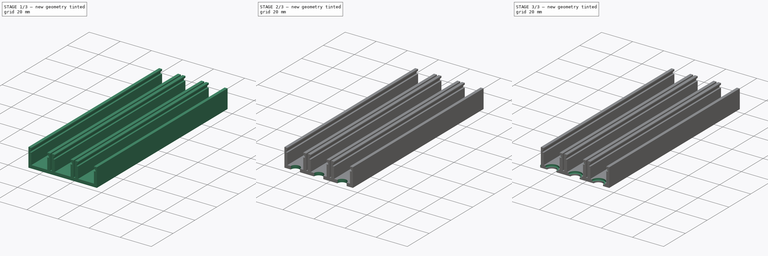
[diagram: build sequence overview — one tinted view per stage of 3, left to right]
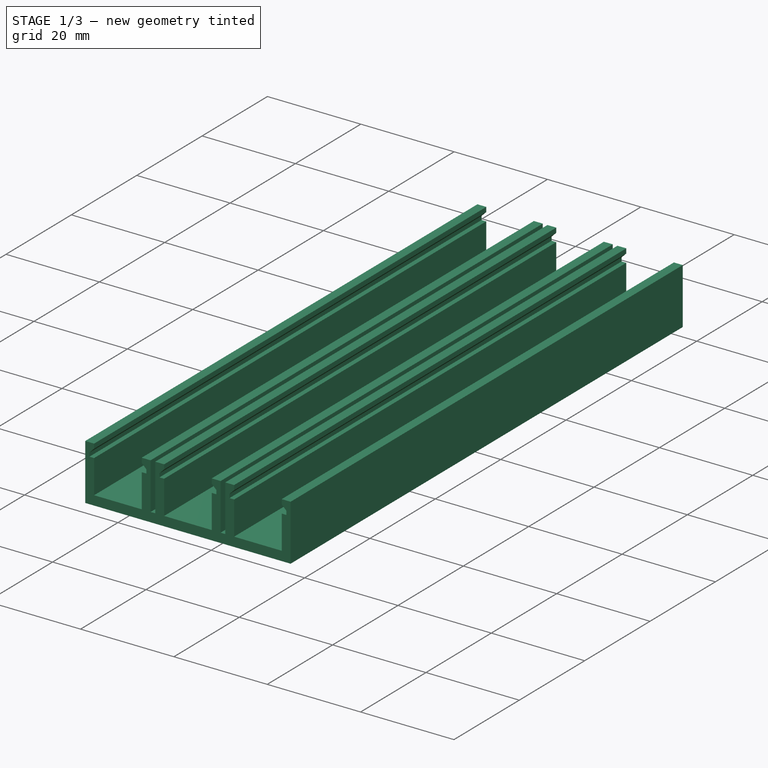
[diagram: stage 1 of 3 — iso view after this stage's code; geometry added in this stage tinted green]
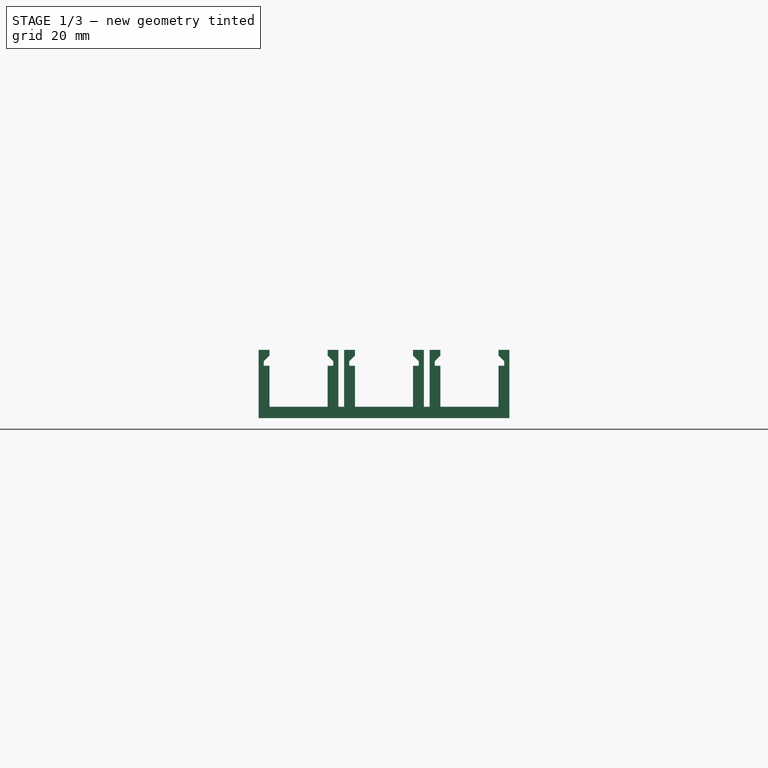
[diagram: stage 1 of 3 — front view after this stage's code; geometry added in this stage tinted green]
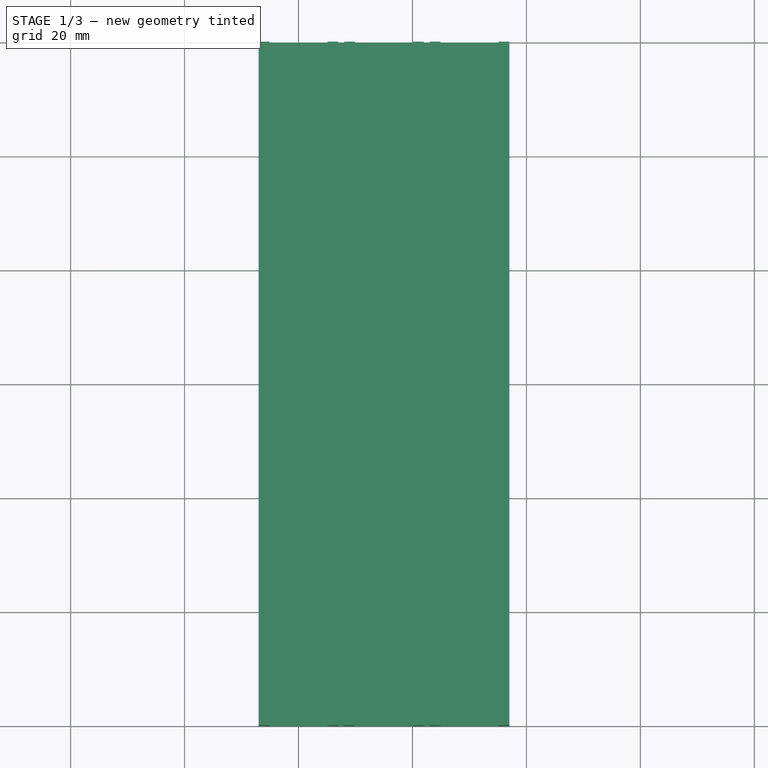
[diagram: stage 1 of 3 — top view after this stage's code; geometry added in this stage tinted green]
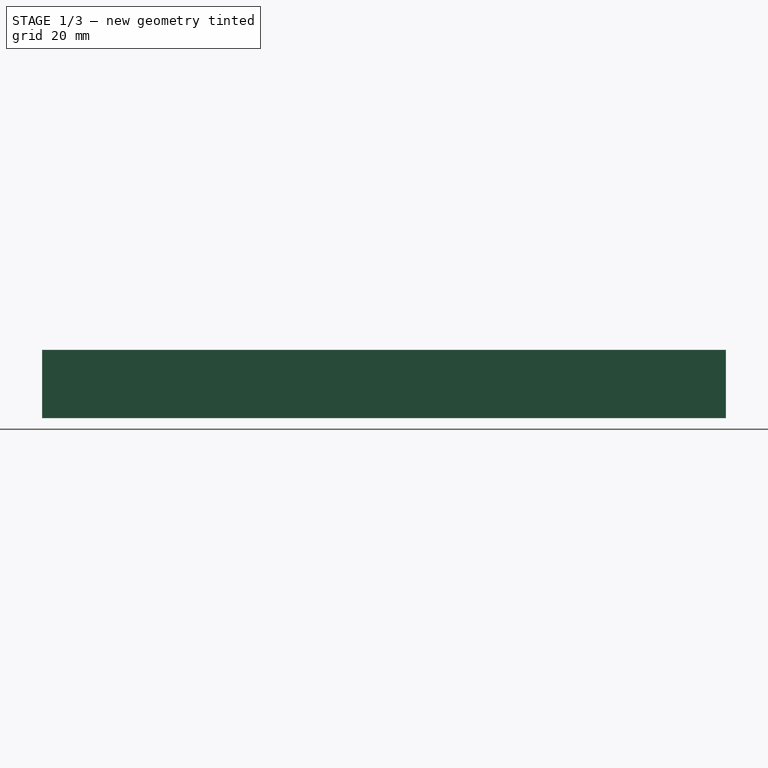
[diagram: stage 1 of 3 — right view after this stage's code; geometry added in this stage tinted green]
FCSTD DOCUMENT  (FreeCAD 0.20R29603 (Git))
Label: 12mm-strip-feeder
License: Other
objects: Sketcher::SketchObject×7, PartDesign::Pocket×4, PartDesign::Pad×3, PartDesign::Plane×1, PartDesign::LinearPattern×1, PartDesign::Body×1, Image::ImagePlane×1
note: 24 computed .brp shape members not serialized (recipe doc carries the construction recipe); baked Part::Feature solids carry a one-line shape summary decoded from their .brp

FEATURE [PartDesign::Plane] DatumPlane001
  AttachmentOffset = pos=(0,0,-6) rot=(0,0,1;0rad)
  Length = 80.9631
  MapMode = 5
  Placement = pos=(0,0,-6) rot=(0,0,1;0rad)
  ResizeMode = 0
  Support = -> [XY_Plane003]
  Width = 163.963
FEATURE [Sketcher::SketchObject] Sketch011
  FullyConstrained = true
  MapMode = 5
  Placement = pos=(0,0,0) rot=(1,0,0;1.5708rad)
  Support = -> [XZ_Plane001]
  sketch-geometry (25):
    g0: LineSegment StartX=7 StartY=-6 StartZ=0 EndX=7 EndY=6 EndZ=0
    g1: LineSegment StartX=7 StartY=6 StartZ=0 EndX=-7 EndY=6 EndZ=0
    g2: LineSegment StartX=-7 StartY=6 StartZ=0 EndX=-7 EndY=-6 EndZ=0
    g3: LineSegment StartX=-7 StartY=-6 StartZ=0 EndX=7 EndY=-6 EndZ=0
    g4: GeomPoint X=0 Y=0 Z=0
    g5: LineSegment StartX=-5.1 StartY=-4 StartZ=0 EndX=-5.1 EndY=3.2 EndZ=0
    g6: LineSegment StartX=-5.1 StartY=6 StartZ=0 EndX=5.1 EndY=6 EndZ=0
    g7: LineSegment StartX=5.1 StartY=6 StartZ=0 EndX=5.1 EndY=4 EndZ=0
    g8: LineSegment StartX=5.1 StartY=-4 StartZ=0 EndX=-5.1 EndY=-4 EndZ=0
    g9: GeomPoint X=0 Y=1 Z=0
    g10: LineSegment StartX=-5.1 StartY=6 StartZ=0 EndX=-7 EndY=6 EndZ=0
    g11: LineSegment StartX=5.1 StartY=6 StartZ=0 EndX=7 EndY=6 EndZ=0
    g12: LineSegment StartX=-6.1 StartY=3.2 StartZ=0 EndX=-6.1 EndY=4 EndZ=0
    g13: LineSegment StartX=-6.1 StartY=4 StartZ=0 EndX=-5.1 EndY=4 EndZ=0
    g14: LineSegment StartX=6.1 StartY=4 StartZ=0 EndX=6.1 EndY=3.2 EndZ=0
    g15: LineSegment StartX=6.1 StartY=3.2 StartZ=0 EndX=5.1 EndY=3.2 EndZ=0
    g16: GeomPoint X=-3e-16 Y=3.6 Z=0
    g17: LineSegment StartX=5.1 StartY=4 StartZ=0 EndX=6.1 EndY=4 EndZ=0
    g18: LineSegment StartX=-5.1 StartY=3.2 StartZ=0 EndX=-6.1 EndY=3.2 EndZ=0
    g19: LineSegment StartX=-5.1 StartY=4 StartZ=0 EndX=-5.1 EndY=6 EndZ=0
    g20: LineSegment StartX=5.1 StartY=3.2 StartZ=0 EndX=5.1 EndY=-4 EndZ=0
    g21: LineSegment StartX=-6.1 StartY=4 StartZ=0 EndX=-5.1 EndY=5 EndZ=0
    g22: LineSegment StartX=-5.1 StartY=6 StartZ=0 EndX=-5.1 EndY=5 EndZ=0
    g23: LineSegment StartX=5.1 StartY=6 StartZ=0 EndX=5.1 EndY=5 EndZ=0
    g24: LineSegment StartX=5.1 StartY=5 StartZ=0 EndX=6.1 EndY=4 EndZ=0
  constraints (62):
    c: Coincident(g0,g1)
    c: Coincident(g1,g2)
    c: Coincident(g2,g3)
    c: Coincident(g3,g0)
    c: Horizontal(g1)
    c: Horizontal(g3)
    c: Vertical(g0)
    c: Vertical(g2)
    c: Symmetric(g1,g0,g4)
    c: Coincident(g4,g-1)
    c: Coincident(g19,g6)
    c: Coincident(g6,g7)
    c: Coincident(g20,g8)
    c: Coincident(g8,g5)
    c: Horizontal(g6)
    c: Horizontal(g8)
    c: Vertical(g5)
    c: Vertical(g7)
    c: Symmetric(g6,g5,g9)
    c: PointOnObject(g9,g-2)
    c: PointOnObject(g7,g1)
    c: Coincident(g10,g19)
    c: Coincident(g10,g2)
    c: Coincident(g11,g7)
    c: Coincident(g11,g0)
    c: Coincident(g12,g13)
    c: Coincident(g17,g14)
    c: Coincident(g14,g15)
    c: Coincident(g18,g12)
    c: Horizontal(g15)
    c: Vertical(g12)
    c: Vertical(g14)
    c: Symmetric(g17,g12,g16)
    c: Coincident(g5,g18)
    c: Coincident(g19,g13)
    c: Coincident(g7,g17)
    c: Coincident(g20,g15)
    c: Vertical(g19)
    c: Tangent(g17,g13)
    c: Tangent(g18,g15)
    c: Symmetric(g12,g14,g-2)
    c: Vertical(g5,g13)
    c: Vertical(g15,g7)
    c: Vertical(g20)
    c: DistanceY(g2,g5) = 2
    c: DistanceX(g12,g14) = 12.2
    c: DistanceY(g14,g14) = 0.8
    c: DistanceY(g2,g13) = 10
    c: DistanceY(g2,g2) = 12
    c: DistanceX(g2,g0) = 14
    c: DistanceX(g2,g5) = 1.9
    c: DistanceX(g18,g18) = 1
    c: Coincident(g21,g12)
    c: PointOnObject(g21,g19)
    c: Coincident(g22,g10)
    c: Coincident(g22,g21)
    c: Coincident(g23,g11)
    c: PointOnObject(g23,g7)
    c: Coincident(g24,g23)
    c: Coincident(g24,g14)
    c: Horizontal(g23,g21)
    c: Angle(g12,g21) = 2.35619
FEATURE [PartDesign::Pad] Pad002
  Direction = (0,-1,-2e-16)
  Length = 120
  Length2 = 10
  Placement = pos=(0,0,0) rot=(1,0,0;1.5708rad)
  Profile = -> Sketch011
  ReferenceAxis = -> Sketch011 [N_Axis]
  Type = 0
FEATURE [Sketcher::SketchObject] Sketch012
  FullyConstrained = true
  MapMode = 5
  Placement = pos=(0,0,-6) rot=(0,0,1;0rad)
  Support = -> [DatumPlane001]
  sketch-geometry (4):
    g0: LineSegment StartX=-7 StartY=0 StartZ=0 EndX=37 EndY=0 EndZ=0
    g1: LineSegment StartX=37 StartY=0 StartZ=0 EndX=37 EndY=-120 EndZ=0
    g2: LineSegment StartX=37 StartY=-120 StartZ=0 EndX=-7 EndY=-120 EndZ=0
    g3: LineSegment StartX=-7 StartY=-120 StartZ=0 EndX=-7 EndY=0 EndZ=0
  constraints (12):
    c: Coincident(g0,g1)
    c: Coincident(g1,g2)
    c: Coincident(g2,g3)
    c: Coincident(g3,g0)
    c: Horizontal(g0)
    c: Horizontal(g2)
    c: Vertical(g1)
    c: Vertical(g3)
    c: PointOnObject(g0,g-1)
    c: Distance(g3) = 120
    c: DistanceX(g2,g2) = 44
    c: DistanceX(g0,g-1) = 7
FEATURE [PartDesign::Pad] Pad003
  BaseFeature = -> Pad002
  Direction = (0,0,1)
  Length = 2
  Length2 = 10
  Placement = pos=(0,0,0) rot=(1,0,0;1.5708rad)
  Profile = -> Sketch012
  ReferenceAxis = -> Sketch012 [N_Axis]
  Type = 0
FEATURE [PartDesign::LinearPattern] LinearPattern001
  BaseFeature = -> Pad003
  Direction = -> Sketch011 [H_Axis]
  Length = 30
  Occurrences = 3
  Originals = -> [Pad002]
  Placement = pos=(0,0,0) rot=(1,0,0;1.5708rad)
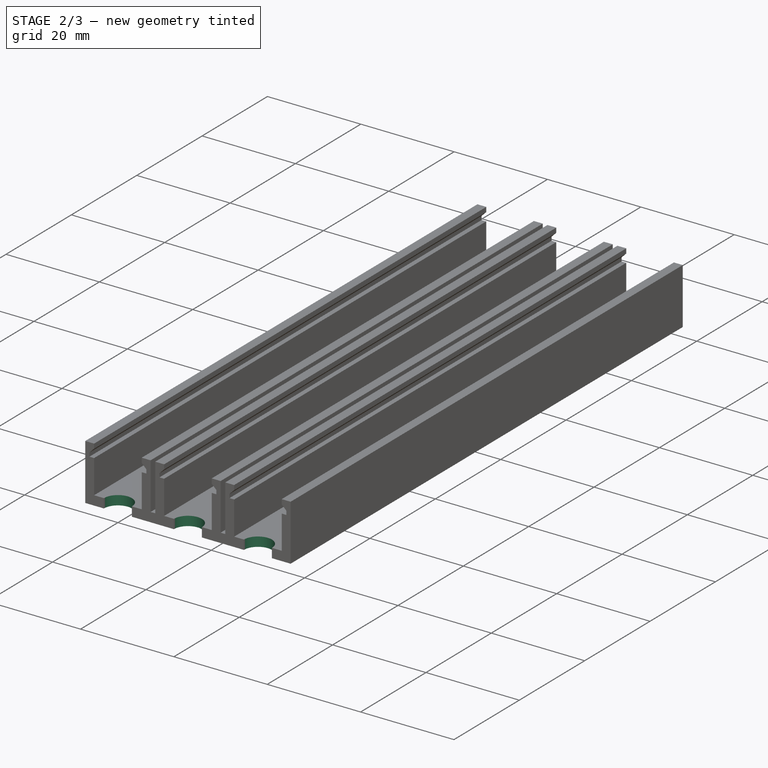
[diagram: stage 2 of 3 — iso view after this stage's code; geometry added in this stage tinted green]
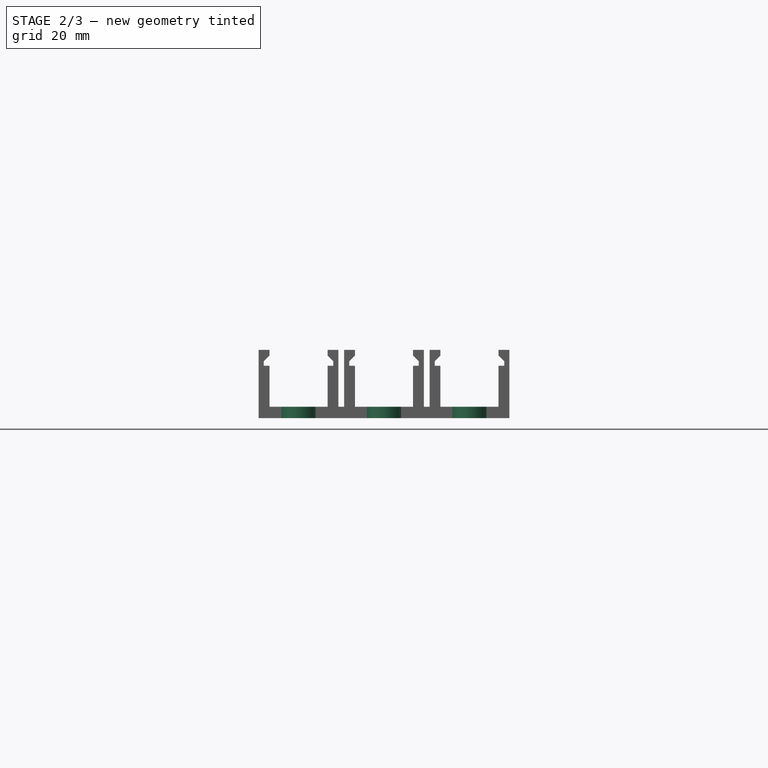
[diagram: stage 2 of 3 — front view after this stage's code; geometry added in this stage tinted green]
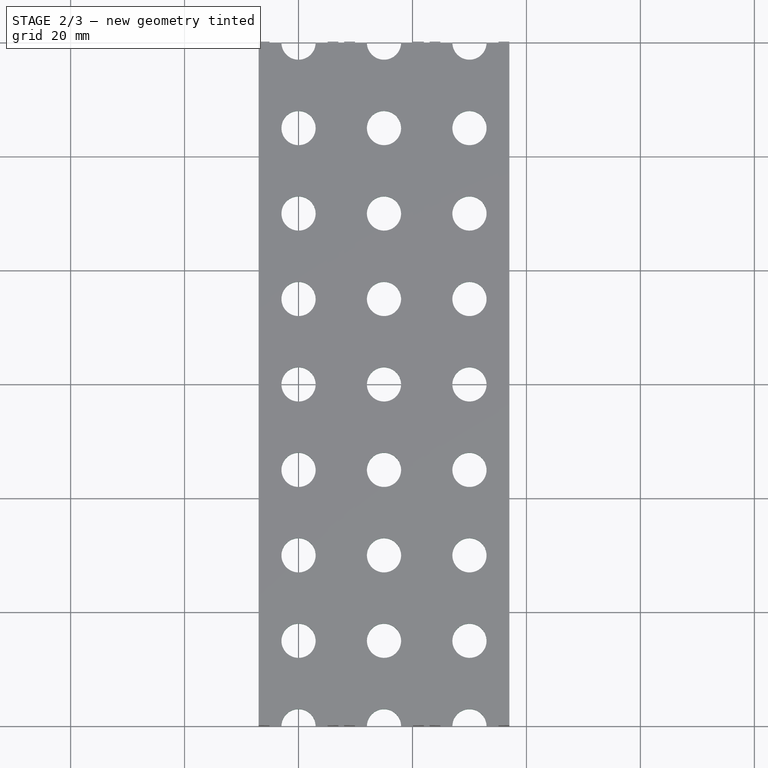
[diagram: stage 2 of 3 — top view after this stage's code; geometry added in this stage tinted green]
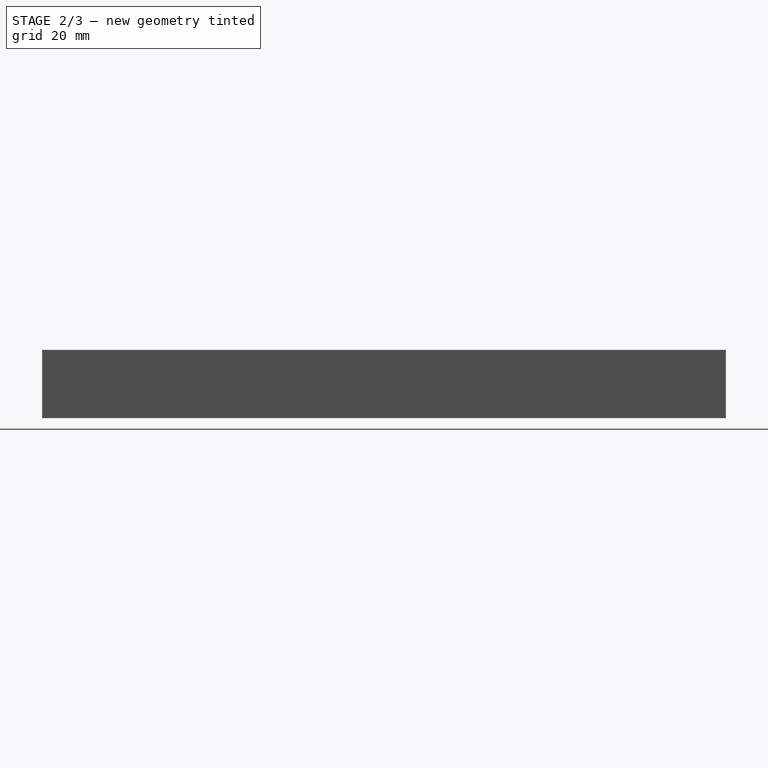
[diagram: stage 2 of 3 — right view after this stage's code; geometry added in this stage tinted green]
FEATURE [Sketcher::SketchObject] Sketch013  label="CounterBoreHoles003"
  AttachmentOffset = pos=(-15,-215.5,-4) rot=(0,0,1;0rad)
  FullyConstrained = false
  MapMode = 5
  Placement = pos=(-15,-215.5,-4) rot=(0,0,1;0rad)
  Support = -> [XY_Plane003]
  sketch-geometry (83):
    g0: Circle CenterX=15 CenterY=35.5 CenterZ=0 NormalX=0 NormalY=0 NormalZ=1 AngleXU=0 Radius=3
    g1: Circle CenterX=45 CenterY=35.5 CenterZ=0 NormalX=0 NormalY=0 NormalZ=1 AngleXU=0 Radius=3
    g2: Circle CenterX=75 CenterY=35.5 CenterZ=0 NormalX=0 NormalY=0 NormalZ=1 AngleXU=0 Radius=3
    g3: Circle CenterX=15 CenterY=65.5 CenterZ=0 NormalX=0 NormalY=0 NormalZ=1 AngleXU=0 Radius=3
    g4: Circle CenterX=45 CenterY=65.5 CenterZ=0 NormalX=0 NormalY=0 NormalZ=1 AngleXU=0 Radius=3
    g5: Circle CenterX=75 CenterY=65.5 CenterZ=0 NormalX=0 NormalY=0 NormalZ=1 AngleXU=0 Radius=3
    g6: LineSegment StartX=15 StartY=35.5 StartZ=0 EndX=15 EndY=65.5 EndZ=0
    g7: Circle CenterX=30 CenterY=20.5 CenterZ=0 NormalX=0 NormalY=0 NormalZ=1 AngleXU=0 Radius=3
    g8: Circle CenterX=60 CenterY=20.5 CenterZ=0 NormalX=0 NormalY=0 NormalZ=1 AngleXU=0 Radius=3
    g9: Circle CenterX=60 CenterY=50.5 CenterZ=0 NormalX=0 NormalY=0 NormalZ=1 AngleXU=0 Radius=3
    g10: Circle CenterX=30 CenterY=50.5 CenterZ=0 NormalX=0 NormalY=0 NormalZ=1 AngleXU=0 Radius=3
    g11: LineSegment StartX=30 StartY=20.5 StartZ=0 EndX=30 EndY=50.5 EndZ=0
    g12: Circle CenterX=90 CenterY=50.5 CenterZ=0 NormalX=0 NormalY=0 NormalZ=1 AngleXU=0 Radius=3
    g13: Circle CenterX=105 CenterY=65.5 CenterZ=0 NormalX=0 NormalY=0 NormalZ=1 AngleXU=0 Radius=3
    g14: Circle CenterX=90 CenterY=20.5 CenterZ=0 NormalX=0 NormalY=0 NormalZ=1 AngleXU=0 Radius=3
    g15: Circle CenterX=105 CenterY=35.5 CenterZ=0 NormalX=0 NormalY=0 NormalZ=1 AngleXU=0 Radius=3
    g16: Circle CenterX=30 CenterY=80.5 CenterZ=0 NormalX=0 NormalY=0 NormalZ=1 AngleXU=0 Radius=3
    g17: Circle CenterX=60 CenterY=80.5 CenterZ=0 NormalX=0 NormalY=0 NormalZ=1 AngleXU=0 Radius=3
    g18: Circle CenterX=90 CenterY=80.5 CenterZ=0 NormalX=0 NormalY=0 NormalZ=1 AngleXU=0 Radius=3
    g19: LineSegment StartX=30 StartY=80.5 StartZ=0 EndX=30 EndY=50.5 EndZ=0
    g20: LineSegment StartX=15 StartY=35.5 StartZ=0 EndX=45 EndY=35.5 EndZ=0
    g21: LineSegment StartX=105 StartY=35.5 StartZ=0 EndX=75 EndY=35.5 EndZ=0
    g22: LineSegment StartX=45 StartY=35.5 StartZ=0 EndX=75 EndY=35.5 EndZ=0
    g23: LineSegment StartX=30 StartY=20.5 StartZ=0 EndX=60 EndY=20.5 EndZ=0
    g24: LineSegment StartX=90 StartY=20.5 StartZ=0 EndX=60 EndY=20.5 EndZ=0
    g25: LineSegment StartX=0 StartY=5.5 StartZ=0 EndX=105 EndY=5.5 EndZ=0
    g26: LineSegment StartX=15 StartY=0 StartZ=0 EndX=15 EndY=80.5 EndZ=0
    g27: Circle CenterX=15 CenterY=95.5 CenterZ=0 NormalX=0 NormalY=0 NormalZ=1 AngleXU=0 Radius=3
    g28: Circle CenterX=45 CenterY=95.5 CenterZ=0 NormalX=0 NormalY=0 NormalZ=1 AngleXU=0 Radius=3
    g29: Circle CenterX=75 CenterY=95.5 CenterZ=0 NormalX=0 NormalY=0 NormalZ=1 AngleXU=0 Radius=3
    g30: Circle CenterX=105 CenterY=95.5 CenterZ=0 NormalX=0 NormalY=0 NormalZ=1 AngleXU=0 Radius=3
    g31: Circle CenterX=30 CenterY=110.5 CenterZ=0 NormalX=0 NormalY=0 NormalZ=1 AngleXU=0 Radius=3
    g32: Circle CenterX=60 CenterY=110.5 CenterZ=0 NormalX=0 NormalY=0 NormalZ=1 AngleXU=0 Radius=3
    g33: Circle CenterX=90 CenterY=110.5 CenterZ=0 NormalX=0 NormalY=0 NormalZ=1 AngleXU=0 Radius=3
    g34: Circle CenterX=15 CenterY=125.5 CenterZ=0 NormalX=0 NormalY=0 NormalZ=1 AngleXU=0 Radius=3
    g35: Circle CenterX=45 CenterY=125.5 CenterZ=0 NormalX=0 NormalY=0 NormalZ=1 AngleXU=0 Radius=3
    g36: Circle CenterX=75 CenterY=125.5 CenterZ=0 NormalX=0 NormalY=0 NormalZ=1 AngleXU=0 Radius=3
    g37: Circle CenterX=105 CenterY=125.5 CenterZ=0 NormalX=0 NormalY=0 NormalZ=1 AngleXU=0 Radius=3
    g38: LineSegment StartX=15 StartY=65.5 StartZ=0 EndX=15 EndY=95.5 EndZ=0
    g39: LineSegment StartX=15 StartY=95.5 StartZ=0 EndX=15 EndY=125.5 EndZ=0
    g40: LineSegment StartX=30 StartY=80.5 StartZ=0 EndX=30 EndY=110.5 EndZ=0
    g41: Circle CenterX=15 CenterY=155.5 CenterZ=0 NormalX=0 NormalY=0 NormalZ=1 AngleXU=0 Radius=3
    g42: Circle CenterX=45 CenterY=155.5 CenterZ=0 NormalX=0 NormalY=0 NormalZ=1 AngleXU=0 Radius=3
    g43: Circle CenterX=75 CenterY=155.5 CenterZ=0 NormalX=0 NormalY=0 NormalZ=1 AngleXU=0 Radius=3
    g44: LineSegment StartX=15 StartY=125.5 StartZ=0 EndX=15 EndY=155.5 EndZ=0
    g45: Circle CenterX=60 CenterY=140.5 CenterZ=0 NormalX=0 NormalY=0 NormalZ=1 AngleXU=0 Radius=3
    g46: Circle CenterX=30 CenterY=140.5 CenterZ=0 NormalX=0 NormalY=0 NormalZ=1 AngleXU=0 Radius=3
    g47: LineSegment StartX=30 StartY=110.5 StartZ=0 EndX=30 EndY=140.5 EndZ=0
    g48: Circle CenterX=90 CenterY=140.5 CenterZ=0 NormalX=0 NormalY=0 NormalZ=1 AngleXU=0 Radius=3
    g49: Circle CenterX=105 CenterY=155.5 CenterZ=0 NormalX=0 NormalY=0 NormalZ=1 AngleXU=0 Radius=3
    g50: Circle CenterX=30 CenterY=170.5 CenterZ=0 NormalX=0 NormalY=0 NormalZ=1 AngleXU=0 Radius=3
    g51: Circle CenterX=60 CenterY=170.5 CenterZ=0 NormalX=0 NormalY=0 NormalZ=1 AngleXU=0 Radius=3
    g52: Circle CenterX=90 CenterY=170.5 CenterZ=0 NormalX=0 NormalY=0 NormalZ=1 AngleXU=0 Radius=3
    g53: LineSegment StartX=30 StartY=170.5 StartZ=0 EndX=30 EndY=140.5 EndZ=0
    g54: Circle CenterX=15 CenterY=185.5 CenterZ=0 NormalX=0 NormalY=0 NormalZ=1 AngleXU=0 Radius=3
    g55: Circle CenterX=45 CenterY=185.5 CenterZ=0 NormalX=0 NormalY=0 NormalZ=1 AngleXU=0 Radius=3
    g56: Circle CenterX=75 CenterY=185.5 CenterZ=0 NormalX=0 NormalY=0 NormalZ=1 AngleXU=0 Radius=3
    g57: Circle CenterX=105 CenterY=185.5 CenterZ=0 NormalX=0 NormalY=0 NormalZ=1 AngleXU=0 Radius=3
    g58: Circle CenterX=30 CenterY=200.5 CenterZ=0 NormalX=0 NormalY=0 NormalZ=1 AngleXU=0 Radius=3
    g59: Circle CenterX=60 CenterY=200.5 CenterZ=0 NormalX=0 NormalY=0 NormalZ=1 AngleXU=0 Radius=3
    g60: Circle CenterX=90 CenterY=200.5 CenterZ=0 NormalX=0 NormalY=0 NormalZ=1 AngleXU=0 Radius=3
    g61: Circle CenterX=15 CenterY=215.5 CenterZ=0 NormalX=0 NormalY=0 NormalZ=1 AngleXU=0 Radius=3
    g62: Circle CenterX=45 CenterY=215.5 CenterZ=0 NormalX=0 NormalY=0 NormalZ=1 AngleXU=0 Radius=3
    g63: Circle CenterX=75 CenterY=215.5 CenterZ=0 NormalX=0 NormalY=0 NormalZ=1 AngleXU=0 Radius=3
    g64: Circle CenterX=105 CenterY=215.5 CenterZ=0 NormalX=0 NormalY=0 NormalZ=1 AngleXU=0 Radius=3
    g65: LineSegment StartX=15 StartY=155.5 StartZ=0 EndX=15 EndY=185.5 EndZ=0
    g66: LineSegment StartX=15 StartY=185.5 StartZ=0 EndX=15 EndY=215.5 EndZ=0
    g67: LineSegment StartX=30 StartY=170.5 StartZ=0 EndX=30 EndY=200.5 EndZ=0
    g68: Circle CenterX=120 CenterY=50.5 CenterZ=0 NormalX=0 NormalY=0 NormalZ=1 AngleXU=0 Radius=3
    g69: Circle CenterX=120 CenterY=20.5 CenterZ=0 NormalX=0 NormalY=0 NormalZ=1 AngleXU=0 Radius=3
    g70: Circle CenterX=120 CenterY=80.5 CenterZ=0 NormalX=0 NormalY=0 NormalZ=1 AngleXU=0 Radius=3
    g71: LineSegment StartX=120 StartY=20.5 StartZ=0 EndX=90 EndY=20.5 EndZ=0
    g72: Circle CenterX=120 CenterY=110.5 CenterZ=0 NormalX=0 NormalY=0 NormalZ=1 AngleXU=0 Radius=3
    g73: Circle CenterX=120 CenterY=140.5 CenterZ=0 NormalX=0 NormalY=0 NormalZ=1 AngleXU=0 Radius=3
    g74: Circle CenterX=120 CenterY=170.5 CenterZ=0 NormalX=0 NormalY=0 NormalZ=1 AngleXU=0 Radius=3
    g75: Circle CenterX=120 CenterY=200.5 CenterZ=0 NormalX=0 NormalY=0 NormalZ=1 AngleXU=0 Radius=3
    g76: Circle CenterX=0 CenterY=50.5 CenterZ=0 NormalX=0 NormalY=0 NormalZ=1 AngleXU=0 Radius=3
    g77: Circle CenterX=0 CenterY=20.5 CenterZ=0 NormalX=0 NormalY=0 NormalZ=1 AngleXU=0 Radius=3
    g78: Circle CenterX=0 CenterY=80.5 CenterZ=0 NormalX=0 NormalY=0 NormalZ=1 AngleXU=0 Radius=3
    g79: Circle CenterX=0 CenterY=110.5 CenterZ=0 NormalX=0 NormalY=0 NormalZ=1 AngleXU=0 Radius=3
    g80: Circle CenterX=0 CenterY=140.5 CenterZ=0 NormalX=0 NormalY=0 NormalZ=1 AngleXU=0 Radius=3
    g81: Circle CenterX=0 CenterY=170.5 CenterZ=0 NormalX=0 NormalY=0 NormalZ=1 AngleXU=0 Radius=3
    g82: Circle CenterX=0 CenterY=200.5 CenterZ=0 NormalX=0 NormalY=0 NormalZ=1 AngleXU=0 Radius=3
  constraints (225):
    c: Equal(g0,g1)
    c: Horizontal(g0,g1)
    c: Horizontal(g1,g2)
    c: Horizontal(g3,g4)
    c: Horizontal(g4,g5)
    c: Vertical(g0,g3)
    c: Vertical(g1,g4)
    c: Vertical(g2,g5)
    c: Equal(g2,g5)
    c: Coincident(g6,g0)
    c: Coincident(g6,g3)
    c: Vertical(g7,g10)
    c: Vertical(g8,g9)
    c: Equal(g8,g9)
    c: Equal(g8,g7)
    c: Equal(g7,g10)
    c: Horizontal(g7,g8)
    c: Horizontal(g10,g9)
    c: Coincident(g11,g7)
    c: Coincident(g11,g10)
    c: Equal(g7,g1)
    c: Equal(g1,g2)
    c: Horizontal(g14,g8)
    c: Horizontal(g2,g15)
    c: Horizontal(g9,g12)
    c: Horizontal(g5,g13)
    c: Vertical(g14,g12)
    c: Vertical(g15,g13)
    c: Equal(g14,g15)
    c: Equal(g15,g12)
    c: Equal(g12,g13)
    c: Equal(g13,g5)
    c: Equal(g4,g3)
    c: Equal(g3,g5)
    c: Equal(g6,g11)
    c: Horizontal(g16,g17)
    c: Horizontal(g17,g18)
    c: Coincident(g19,g16)
    c: Coincident(g19,g10)
    c: Equal(g19,g6)
    c: Vertical(g10,g16)
    c: Equal(g16,g17)
    c: Equal(g17,g18)
    c: Equal(g18,g5)
    c: Vertical(g17,g9)
    c: Vertical(g12,g18)
    c: Coincident(g20,g0)
    c: Coincident(g20,g1)
    c: Coincident(g21,g15)
    c: Coincident(g21,g2)
    c: Coincident(g22,g1)
    c: Coincident(g22,g2)
    c: Coincident(g23,g7)
    c: Coincident(g23,g8)
    c: Coincident(g24,g14)
    c: Coincident(g24,g8)
    c: Equal(g20,g22)
    c: Equal(g22,g21)
    c: Equal(g20,g23)
    c: Equal(g23,g24)
    c: PointOnObject(g25,g-2)
    c: Horizontal(g25)
    c: Vertical(g25,g15)
    c: PointOnObject(g26,g-1)
    c: Vertical(g26)
    c: Horizontal(g16,g26)
    c: DistanceX(g-1,g26) = 15
    c: Horizontal(g27,g28)
    c: Horizontal(g28,g29)
    c: Horizontal(g29,g30)
    c: Horizontal(g31,g32)
    c: Horizontal(g32,g33)
    c: Horizontal(g34,g35)
    c: Horizontal(g35,g36)
    c: Horizontal(g36,g37)
    c: Coincident(g38,g3)
    c: Coincident(g38,g27)
    c: Vertical(g38)
    c: Coincident(g39,g27)
    c: Coincident(g39,g34)
    c: Coincident(g40,g16)
    c: Coincident(g40,g31)
    c: Vertical(g31,g16)
    c: Vertical(g3,g34)
    c: Vertical(g4,g28)
    c: Vertical(g28,g35)
    c: Vertical(g17,g32)
    c: Equal(g38,g39)
    c: Equal(g39,g40)
    c: Equal(g40,g19)
    c: Vertical(g5,g29)
    c: Vertical(g29,g36)
    c: Vertical(g18,g33)
    c: Vertical(g13,g30)
    c: Vertical(g30,g37)
    c: Equal(g30,g29)
    c: Equal(g29,g28)
    c: Equal(g28,g31)
    c: Equal(g31,g27)
    c: Equal(g27,g34)
    c: Equal(g34,g35)
    c: Equal(g35,g32)
    c: Equal(g32,g36)
    c: Equal(g36,g33)
    c: Horizontal(g41,g42)
    c: Horizontal(g42,g43)
    c: Coincident(g44,g41)
    c: Horizontal(g46,g45)
    c: Coincident(g47,g46)
    c: Equal(g11,g47) = 30
    c: Horizontal(g45,g48)
    c: Horizontal(g43,g49)
    c: Equal(g48,g49)
    c: Equal(g49,g43)
    c: Equal(g13,g49) = 5
    c: Equal(g42,g41)
    c: Equal(g41,g43)
    c: Equal(g44,g47)
    c: Horizontal(g50,g51)
    c: Horizontal(g51,g52)
    c: Coincident(g53,g50)
    c: Coincident(g53,g46)
    c: Equal(g53,g44)
    c: Vertical(g46,g50)
    c: Equal(g50,g51)
    c: Equal(g51,g52)
    c: Equal(g52,g43)
    c: Vertical(g51,g45)
    c: Vertical(g48,g52)
    c: Horizontal(g54,g55)
    c: Horizontal(g55,g56)
    c: Horizontal(g56,g57)
    c: Horizontal(g58,g59)
    c: Horizontal(g59,g60)
    c: Horizontal(g61,g62)
    c: Horizontal(g62,g63)
    c: Horizontal(g63,g64)
    c: Coincident(g65,g41)
    c: Coincident(g65,g54)
    c: Vertical(g65)
    c: Coincident(g66,g54)
    c: Coincident(g66,g61)
    c: Coincident(g67,g50)
    c: Coincident(g67,g58)
    c: Vertical(g58,g50)
    c: Vertical(g41,g61)
    c: Vertical(g42,g55)
    c: Vertical(g55,g62)
    c: Vertical(g51,g59)
    c: Equal(g65,g66)
    c: Equal(g66,g67)
    c: Equal(g67,g53)
    c: Vertical(g43,g56)
    c: Vertical(g56,g63)
    c: Vertical(g52,g60)
    c: Vertical(g49,g57)
    c: Vertical(g57,g64)
    c: Equal(g57,g56)
    c: Equal(g56,g55)
    c: Equal(g55,g58)
    c: Equal(g58,g54)
    c: Equal(g54,g61)
    c: Equal(g61,g62)
    c: Equal(g62,g59)
    c: Equal(g59,g63)
    c: Equal(g63,g60)
    c: Diameter(g57) = 6
    c: Diameter(g64) = 6
    c: Diameter(g51) = 6
    c: Diameter(g45) = 6
    c: Diameter(g46) = 6
    c: Diameter(g31) = 6
    c: Diameter(g37) = 6
    c: Vertical(g47)
    c: Vertical(g44)
    c: Coincident(g47,g31)
    c: Coincident(g44,g34)
    c: Vertical(g42,g35)
    c: Vertical(g45,g32)
    c: Vertical(g43,g36)
    c: Vertical(g48,g33)
    c: Vertical(g49,g37)
    c: Vertical(g69,g68)
    c: Vertical(g68,g70)
    c: Coincident(g71,g69)
    c: Vertical(g70,g72)
    c: Vertical(g73,g74)
    c: Vertical(g74,g75)
    c: Vertical(g73,g72)
    c: Horizontal(g71)
    c: Coincident(g71,g14)
    c: Horizontal(g68,g12)
    c: Horizontal(g70,g18)
    c: Horizontal(g72,g33)
    c: Horizontal(g73,g48)
    c: Horizontal(g74,g52)
    c: Horizontal(g60,g75)
    c: Equal(g75,g74)
    c: Equal(g74,g73)
    c: Equal(g73,g72)
    c: Equal(g72,g70)
    c: Equal(g70,g68)
    c: Equal(g68,g69)
    c: Equal(g69,g0)
    c: Vertical(g77,g76)
    c: Vertical(g76,g78)
    c: Vertical(g78,g79)
    c: Vertical(g80,g81)
    c: Vertical(g81,g82)
    c: Vertical(g80,g79)
    c: Equal(g82,g81)
    c: Equal(g81,g80)
    c: Equal(g80,g79)
    c: Equal(g79,g78)
    c: Equal(g78,g76)
    c: Equal(g76,g77)
    c: PointOnObject(g82,g-2)
    c: Horizontal(g77,g7)
    c: Equal(g82,g0)
    c: Horizontal(g76,g10)
    c: Horizontal(g78,g16)
    c: Horizontal(g79,g31)
    c: Horizontal(g80,g46)
    c: Horizontal(g81,g50)
    c: Horizontal(g82,g58)
FEATURE [Sketcher::SketchObject] Sketch014  label="CounterBoreHoles004"
  AttachmentOffset = pos=(0,-215.5,-4) rot=(0,0,1;0rad)
  FullyConstrained = false
  MapMode = 5
  Placement = pos=(0,-215.5,-4) rot=(0,0,1;0rad)
  Support = -> [XY_Plane003]
  sketch-geometry (83):
    g0: Circle CenterX=15 CenterY=35.5 CenterZ=0 NormalX=0 NormalY=0 NormalZ=1 AngleXU=0 Radius=3
    g1: Circle CenterX=45 CenterY=35.5 CenterZ=0 NormalX=0 NormalY=0 NormalZ=1 AngleXU=0 Radius=3
    g2: Circle CenterX=75 CenterY=35.5 CenterZ=0 NormalX=0 NormalY=0 NormalZ=1 AngleXU=0 Radius=3
    g3: Circle CenterX=15 CenterY=65.5 CenterZ=0 NormalX=0 NormalY=0 NormalZ=1 AngleXU=0 Radius=3
    g4: Circle CenterX=45 CenterY=65.5 CenterZ=0 NormalX=0 NormalY=0 NormalZ=1 AngleXU=0 Radius=3
    g5: Circle CenterX=75 CenterY=65.5 CenterZ=0 NormalX=0 NormalY=0 NormalZ=1 AngleXU=0 Radius=3
    g6: LineSegment StartX=15 StartY=35.5 StartZ=0 EndX=15 EndY=65.5 EndZ=0
    g7: Circle CenterX=30 CenterY=20.5 CenterZ=0 NormalX=0 NormalY=0 NormalZ=1 AngleXU=0 Radius=3
    g8: Circle CenterX=60 CenterY=20.5 CenterZ=0 NormalX=0 NormalY=0 NormalZ=1 AngleXU=0 Radius=3
    g9: Circle CenterX=60 CenterY=50.5 CenterZ=0 NormalX=0 NormalY=0 NormalZ=1 AngleXU=0 Radius=3
    g10: Circle CenterX=30 CenterY=50.5 CenterZ=0 NormalX=0 NormalY=0 NormalZ=1 AngleXU=0 Radius=3
    g11: LineSegment StartX=30 StartY=20.5 StartZ=0 EndX=30 EndY=50.5 EndZ=0
    g12: Circle CenterX=90 CenterY=50.5 CenterZ=0 NormalX=0 NormalY=0 NormalZ=1 AngleXU=0 Radius=3
    g13: Circle CenterX=105 CenterY=65.5 CenterZ=0 NormalX=0 NormalY=0 NormalZ=1 AngleXU=0 Radius=3
    g14: Circle CenterX=90 CenterY=20.5 CenterZ=0 NormalX=0 NormalY=0 NormalZ=1 AngleXU=0 Radius=3
    g15: Circle CenterX=105 CenterY=35.5 CenterZ=0 NormalX=0 NormalY=0 NormalZ=1 AngleXU=0 Radius=3
    g16: Circle CenterX=30 CenterY=80.5 CenterZ=0 NormalX=0 NormalY=0 NormalZ=1 AngleXU=0 Radius=3
    g17: Circle CenterX=60 CenterY=80.5 CenterZ=0 NormalX=0 NormalY=0 NormalZ=1 AngleXU=0 Radius=3
    g18: Circle CenterX=90 CenterY=80.5 CenterZ=0 NormalX=0 NormalY=0 NormalZ=1 AngleXU=0 Radius=3
    g19: LineSegment StartX=30 StartY=80.5 StartZ=0 EndX=30 EndY=50.5 EndZ=0
    g20: LineSegment StartX=15 StartY=35.5 StartZ=0 EndX=45 EndY=35.5 EndZ=0
    g21: LineSegment StartX=105 StartY=35.5 StartZ=0 EndX=75 EndY=35.5 EndZ=0
    g22: LineSegment StartX=45 StartY=35.5 StartZ=0 EndX=75 EndY=35.5 EndZ=0
    g23: LineSegment StartX=30 StartY=20.5 StartZ=0 EndX=60 EndY=20.5 EndZ=0
    g24: LineSegment StartX=90 StartY=20.5 StartZ=0 EndX=60 EndY=20.5 EndZ=0
    g25: LineSegment StartX=0 StartY=5.5 StartZ=0 EndX=105 EndY=5.5 EndZ=0
    g26: LineSegment StartX=15 StartY=0 StartZ=0 EndX=15 EndY=80.5 EndZ=0
    g27: Circle CenterX=15 CenterY=95.5 CenterZ=0 NormalX=0 NormalY=0 NormalZ=1 AngleXU=0 Radius=3
    g28: Circle CenterX=45 CenterY=95.5 CenterZ=0 NormalX=0 NormalY=0 NormalZ=1 AngleXU=0 Radius=3
    g29: Circle CenterX=75 CenterY=95.5 CenterZ=0 NormalX=0 NormalY=0 NormalZ=1 AngleXU=0 Radius=3
    g30: Circle CenterX=105 CenterY=95.5 CenterZ=0 NormalX=0 NormalY=0 NormalZ=1 AngleXU=0 Radius=3
    g31: Circle CenterX=30 CenterY=110.5 CenterZ=0 NormalX=0 NormalY=0 NormalZ=1 AngleXU=0 Radius=3
    g32: Circle CenterX=60 CenterY=110.5 CenterZ=0 NormalX=0 NormalY=0 NormalZ=1 AngleXU=0 Radius=3
    g33: Circle CenterX=90 CenterY=110.5 CenterZ=0 NormalX=0 NormalY=0 NormalZ=1 AngleXU=0 Radius=3
    g34: Circle CenterX=15 CenterY=125.5 CenterZ=0 NormalX=0 NormalY=0 NormalZ=1 AngleXU=0 Radius=3
    g35: Circle CenterX=45 CenterY=125.5 CenterZ=0 NormalX=0 NormalY=0 NormalZ=1 AngleXU=0 Radius=3
    g36: Circle CenterX=75 CenterY=125.5 CenterZ=0 NormalX=0 NormalY=0 NormalZ=1 AngleXU=0 Radius=3
    g37: Circle CenterX=105 CenterY=125.5 CenterZ=0 NormalX=0 NormalY=0 NormalZ=1 AngleXU=0 Radius=3
    g38: LineSegment StartX=15 StartY=65.5 StartZ=0 EndX=15 EndY=95.5 EndZ=0
    g39: LineSegment StartX=15 StartY=95.5 StartZ=0 EndX=15 EndY=125.5 EndZ=0
    g40: LineSegment StartX=30 StartY=80.5 StartZ=0 EndX=30 EndY=110.5 EndZ=0
    g41: Circle CenterX=15 CenterY=155.5 CenterZ=0 NormalX=0 NormalY=0 NormalZ=1 AngleXU=0 Radius=3
    g42: Circle CenterX=45 CenterY=155.5 CenterZ=0 NormalX=0 NormalY=0 NormalZ=1 AngleXU=0 Radius=3
    g43: Circle CenterX=75 CenterY=155.5 CenterZ=0 NormalX=0 NormalY=0 NormalZ=1 AngleXU=0 Radius=3
    g44: LineSegment StartX=15 StartY=125.5 StartZ=0 EndX=15 EndY=155.5 EndZ=0
    g45: Circle CenterX=60 CenterY=140.5 CenterZ=0 NormalX=0 NormalY=0 NormalZ=1 AngleXU=0 Radius=3
    g46: Circle CenterX=30 CenterY=140.5 CenterZ=0 NormalX=0 NormalY=0 NormalZ=1 AngleXU=0 Radius=3
    g47: LineSegment StartX=30 StartY=110.5 StartZ=0 EndX=30 EndY=140.5 EndZ=0
    g48: Circle CenterX=90 CenterY=140.5 CenterZ=0 NormalX=0 NormalY=0 NormalZ=1 AngleXU=0 Radius=3
    g49: Circle CenterX=105 CenterY=155.5 CenterZ=0 NormalX=0 NormalY=0 NormalZ=1 AngleXU=0 Radius=3
    g50: Circle CenterX=30 CenterY=170.5 CenterZ=0 NormalX=0 NormalY=0 NormalZ=1 AngleXU=0 Radius=3
    g51: Circle CenterX=60 CenterY=170.5 CenterZ=0 NormalX=0 NormalY=0 NormalZ=1 AngleXU=0 Radius=3
    g52: Circle CenterX=90 CenterY=170.5 CenterZ=0 NormalX=0 NormalY=0 NormalZ=1 AngleXU=0 Radius=3
    g53: LineSegment StartX=30 StartY=170.5 StartZ=0 EndX=30 EndY=140.5 EndZ=0
    g54: Circle CenterX=15 CenterY=185.5 CenterZ=0 NormalX=0 NormalY=0 NormalZ=1 AngleXU=0 Radius=3
    g55: Circle CenterX=45 CenterY=185.5 CenterZ=0 NormalX=0 NormalY=0 NormalZ=1 AngleXU=0 Radius=3
    g56: Circle CenterX=75 CenterY=185.5 CenterZ=0 NormalX=0 NormalY=0 NormalZ=1 AngleXU=0 Radius=3
    g57: Circle CenterX=105 CenterY=185.5 CenterZ=0 NormalX=0 NormalY=0 NormalZ=1 AngleXU=0 Radius=3
    g58: Circle CenterX=30 CenterY=200.5 CenterZ=0 NormalX=0 NormalY=0 NormalZ=1 AngleXU=0 Radius=3
    g59: Circle CenterX=60 CenterY=200.5 CenterZ=0 NormalX=0 NormalY=0 NormalZ=1 AngleXU=0 Radius=3
    g60: Circle CenterX=90 CenterY=200.5 CenterZ=0 NormalX=0 NormalY=0 NormalZ=1 AngleXU=0 Radius=3
    g61: Circle CenterX=15 CenterY=215.5 CenterZ=0 NormalX=0 NormalY=0 NormalZ=1 AngleXU=0 Radius=3
    g62: Circle CenterX=45 CenterY=215.5 CenterZ=0 NormalX=0 NormalY=0 NormalZ=1 AngleXU=0 Radius=3
    g63: Circle CenterX=75 CenterY=215.5 CenterZ=0 NormalX=0 NormalY=0 NormalZ=1 AngleXU=0 Radius=3
    g64: Circle CenterX=105 CenterY=215.5 CenterZ=0 NormalX=0 NormalY=0 NormalZ=1 AngleXU=0 Radius=3
    g65: LineSegment StartX=15 StartY=155.5 StartZ=0 EndX=15 EndY=185.5 EndZ=0
    g66: LineSegment StartX=15 StartY=185.5 StartZ=0 EndX=15 EndY=215.5 EndZ=0
    g67: LineSegment StartX=30 StartY=170.5 StartZ=0 EndX=30 EndY=200.5 EndZ=0
    g68: Circle CenterX=120 CenterY=50.5 CenterZ=0 NormalX=0 NormalY=0 NormalZ=1 AngleXU=0 Radius=3
    g69: Circle CenterX=120 CenterY=20.5 CenterZ=0 NormalX=0 NormalY=0 NormalZ=1 AngleXU=0 Radius=3
    g70: Circle CenterX=120 CenterY=80.5 CenterZ=0 NormalX=0 NormalY=0 NormalZ=1 AngleXU=0 Radius=3
    g71: LineSegment StartX=120 StartY=20.5 StartZ=0 EndX=90 EndY=20.5 EndZ=0
    g72: Circle CenterX=120 CenterY=110.5 CenterZ=0 NormalX=0 NormalY=0 NormalZ=1 AngleXU=0 Radius=3
    g73: Circle CenterX=120 CenterY=140.5 CenterZ=0 NormalX=0 NormalY=0 NormalZ=1 AngleXU=0 Radius=3
    g74: Circle CenterX=120 CenterY=170.5 CenterZ=0 NormalX=0 NormalY=0 NormalZ=1 AngleXU=0 Radius=3
    g75: Circle CenterX=120 CenterY=200.5 CenterZ=0 NormalX=0 NormalY=0 NormalZ=1 AngleXU=0 Radius=3
    g76: Circle CenterX=0 CenterY=50.5 CenterZ=0 NormalX=0 NormalY=0 NormalZ=1 AngleXU=0 Radius=3
    g77: Circle CenterX=0 CenterY=20.5 CenterZ=0 NormalX=0 NormalY=0 NormalZ=1 AngleXU=0 Radius=3
    g78: Circle CenterX=0 CenterY=80.5 CenterZ=0 NormalX=0 NormalY=0 NormalZ=1 AngleXU=0 Radius=3
    g79: Circle CenterX=0 CenterY=110.5 CenterZ=0 NormalX=0 NormalY=0 NormalZ=1 AngleXU=0 Radius=3
    g80: Circle CenterX=0 CenterY=140.5 CenterZ=0 NormalX=0 NormalY=0 NormalZ=1 AngleXU=0 Radius=3
    g81: Circle CenterX=0 CenterY=170.5 CenterZ=0 NormalX=0 NormalY=0 NormalZ=1 AngleXU=0 Radius=3
    g82: Circle CenterX=0 CenterY=200.5 CenterZ=0 NormalX=0 NormalY=0 NormalZ=1 AngleXU=0 Radius=3
  constraints (225):
    c: Equal(g0,g1)
    c: Horizontal(g0,g1)
    c: Horizontal(g1,g2)
    c: Horizontal(g3,g4)
    c: Horizontal(g4,g5)
    c: Vertical(g0,g3)
    c: Vertical(g1,g4)
    c: Vertical(g2,g5)
    c: Equal(g2,g5)
    c: Coincident(g6,g0)
    c: Coincident(g6,g3)
    c: Vertical(g7,g10)
    c: Vertical(g8,g9)
    c: Equal(g8,g9)
    c: Equal(g8,g7)
    c: Equal(g7,g10)
    c: Horizontal(g7,g8)
    c: Horizontal(g10,g9)
    c: Coincident(g11,g7)
    c: Coincident(g11,g10)
    c: Equal(g7,g1)
    c: Equal(g1,g2)
    c: Horizontal(g14,g8)
    c: Horizontal(g2,g15)
    c: Horizontal(g9,g12)
    c: Horizontal(g5,g13)
    c: Vertical(g14,g12)
    c: Vertical(g15,g13)
    c: Equal(g14,g15)
    c: Equal(g15,g12)
    c: Equal(g12,g13)
    c: Equal(g13,g5)
    c: Equal(g4,g3)
    c: Equal(g3,g5)
    c: Equal(g6,g11)
    c: Horizontal(g16,g17)
    c: Horizontal(g17,g18)
    c: Coincident(g19,g16)
    c: Coincident(g19,g10)
    c: Equal(g19,g6)
    c: Vertical(g10,g16)
    c: Equal(g16,g17)
    c: Equal(g17,g18)
    c: Equal(g18,g5)
    c: Vertical(g17,g9)
    c: Vertical(g12,g18)
    c: Coincident(g20,g0)
    c: Coincident(g20,g1)
    c: Coincident(g21,g15)
    c: Coincident(g21,g2)
    c: Coincident(g22,g1)
    c: Coincident(g22,g2)
    c: Coincident(g23,g7)
    c: Coincident(g23,g8)
    c: Coincident(g24,g14)
    c: Coincident(g24,g8)
    c: Equal(g20,g22)
    c: Equal(g22,g21)
    c: Equal(g20,g23)
    c: Equal(g23,g24)
    c: PointOnObject(g25,g-2)
    c: Horizontal(g25)
    c: Vertical(g25,g15)
    c: PointOnObject(g26,g-1)
    c: Vertical(g26)
    c: Horizontal(g16,g26)
    c: DistanceX(g-1,g26) = 15
    c: Horizontal(g27,g28)
    c: Horizontal(g28,g29)
    c: Horizontal(g29,g30)
    c: Horizontal(g31,g32)
    c: Horizontal(g32,g33)
    c: Horizontal(g34,g35)
    c: Horizontal(g35,g36)
    c: Horizontal(g36,g37)
    c: Coincident(g38,g3)
    c: Coincident(g38,g27)
    c: Vertical(g38)
    c: Coincident(g39,g27)
    c: Coincident(g39,g34)
    c: Coincident(g40,g16)
    c: Coincident(g40,g31)
    c: Vertical(g31,g16)
    c: Vertical(g3,g34)
    c: Vertical(g4,g28)
    c: Vertical(g28,g35)
    c: Vertical(g17,g32)
    c: Equal(g38,g39)
    c: Equal(g39,g40)
    c: Equal(g40,g19)
    c: Vertical(g5,g29)
    c: Vertical(g29,g36)
    c: Vertical(g18,g33)
    c: Vertical(g13,g30)
    c: Vertical(g30,g37)
    c: Equal(g30,g29)
    c: Equal(g29,g28)
    c: Equal(g28,g31)
    c: Equal(g31,g27)
    c: Equal(g27,g34)
    c: Equal(g34,g35)
    c: Equal(g35,g32)
    c: Equal(g32,g36)
    c: Equal(g36,g33)
    c: Horizontal(g41,g42)
    c: Horizontal(g42,g43)
    c: Coincident(g44,g41)
    c: Horizontal(g46,g45)
    c: Coincident(g47,g46)
    c: Equal(g11,g47) = 30
    c: Horizontal(g45,g48)
    c: Horizontal(g43,g49)
    c: Equal(g48,g49)
    c: Equal(g49,g43)
    c: Equal(g13,g49) = 5
    c: Equal(g42,g41)
    c: Equal(g41,g43)
    c: Equal(g44,g47)
    c: Horizontal(g50,g51)
    c: Horizontal(g51,g52)
    c: Coincident(g53,g50)
    c: Coincident(g53,g46)
    c: Equal(g53,g44)
    c: Vertical(g46,g50)
    c: Equal(g50,g51)
    c: Equal(g51,g52)
    c: Equal(g52,g43)
    c: Vertical(g51,g45)
    c: Vertical(g48,g52)
    c: Horizontal(g54,g55)
    c: Horizontal(g55,g56)
    c: Horizontal(g56,g57)
    c: Horizontal(g58,g59)
    c: Horizontal(g59,g60)
    c: Horizontal(g61,g62)
    c: Horizontal(g62,g63)
    c: Horizontal(g63,g64)
    c: Coincident(g65,g41)
    c: Coincident(g65,g54)
    c: Vertical(g65)
    c: Coincident(g66,g54)
    c: Coincident(g66,g61)
    c: Coincident(g67,g50)
    c: Coincident(g67,g58)
    c: Vertical(g58,g50)
    c: Vertical(g41,g61)
    c: Vertical(g42,g55)
    c: Vertical(g55,g62)
    c: Vertical(g51,g59)
    c: Equal(g65,g66)
    c: Equal(g66,g67)
    c: Equal(g67,g53)
    c: Vertical(g43,g56)
    c: Vertical(g56,g63)
    c: Vertical(g52,g60)
    c: Vertical(g49,g57)
    c: Vertical(g57,g64)
    c: Equal(g57,g56)
    c: Equal(g56,g55)
    c: Equal(g55,g58)
    c: Equal(g58,g54)
    c: Equal(g54,g61)
    c: Equal(g61,g62)
    c: Equal(g62,g59)
    c: Equal(g59,g63)
    c: Equal(g63,g60)
    c: Diameter(g57) = 6
    c: Diameter(g64) = 6
    c: Diameter(g51) = 6
    c: Diameter(g45) = 6
    c: Diameter(g46) = 6
    c: Diameter(g31) = 6
    c: Diameter(g37) = 6
    c: Vertical(g47)
    c: Vertical(g44)
    c: Coincident(g47,g31)
    c: Coincident(g44,g34)
    c: Vertical(g42,g35)
    c: Vertical(g45,g32)
    c: Vertical(g43,g36)
    c: Vertical(g48,g33)
    c: Vertical(g49,g37)
    c: Vertical(g69,g68)
    c: Vertical(g68,g70)
    c: Coincident(g71,g69)
    c: Vertical(g70,g72)
    c: Vertical(g73,g74)
    c: Vertical(g74,g75)
    c: Vertical(g73,g72)
    c: Horizontal(g71)
    c: Coincident(g71,g14)
    c: Horizontal(g68,g12)
    c: Horizontal(g70,g18)
    c: Horizontal(g72,g33)
    c: Horizontal(g73,g48)
    c: Horizontal(g74,g52)
    c: Horizontal(g60,g75)
    c: Equal(g75,g74)
    c: Equal(g74,g73)
    c: Equal(g73,g72)
    c: Equal(g72,g70)
    c: Equal(g70,g68)
    c: Equal(g68,g69)
    c: Equal(g69,g0)
    c: Vertical(g77,g76)
    c: Vertical(g76,g78)
    c: Vertical(g78,g79)
    c: Vertical(g80,g81)
    c: Vertical(g81,g82)
    c: Vertical(g80,g79)
    c: Equal(g82,g81)
    c: Equal(g81,g80)
    c: Equal(g80,g79)
    c: Equal(g79,g78)
    c: Equal(g78,g76)
    c: Equal(g76,g77)
    c: PointOnObject(g82,g-2)
    c: Horizontal(g77,g7)
    c: Equal(g82,g0)
    c: Horizontal(g76,g10)
    c: Horizontal(g78,g16)
    c: Horizontal(g79,g31)
    c: Horizontal(g80,g46)
    c: Horizontal(g81,g50)
    c: Horizontal(g82,g58)
FEATURE [Sketcher::SketchObject] Sketch016  label="CounterBoreHoles005"
  AttachmentOffset = pos=(-15,-215.5,-4) rot=(0,0,1;0rad)
  FullyConstrained = false
  MapMode = 5
  Placement = pos=(-15,-215.5,-4) rot=(0,0,1;0rad)
  Support = -> [XY_Plane003]
  sketch-geometry (83):
    g0: Circle CenterX=15 CenterY=35.5 CenterZ=0 NormalX=0 NormalY=0 NormalZ=1 AngleXU=0 Radius=4.15
    g1: Circle CenterX=45 CenterY=35.5 CenterZ=0 NormalX=0 NormalY=0 NormalZ=1 AngleXU=0 Radius=4.15
    g2: Circle CenterX=75 CenterY=35.5 CenterZ=0 NormalX=0 NormalY=0 NormalZ=1 AngleXU=0 Radius=4.15
    g3: Circle CenterX=15 CenterY=65.5 CenterZ=0 NormalX=0 NormalY=0 NormalZ=1 AngleXU=0 Radius=4.15
    g4: Circle CenterX=45 CenterY=65.5 CenterZ=0 NormalX=0 NormalY=0 NormalZ=1 AngleXU=0 Radius=4.15
    g5: Circle CenterX=75 CenterY=65.5 CenterZ=0 NormalX=0 NormalY=0 NormalZ=1 AngleXU=0 Radius=4.15
    g6: LineSegment StartX=15 StartY=35.5 StartZ=0 EndX=15 EndY=65.5 EndZ=0
    g7: Circle CenterX=30 CenterY=20.5 CenterZ=0 NormalX=0 NormalY=0 NormalZ=1 AngleXU=0 Radius=4.15
    g8: Circle CenterX=60 CenterY=20.5 CenterZ=0 NormalX=0 NormalY=0 NormalZ=1 AngleXU=0 Radius=4.15
    g9: Circle CenterX=60 CenterY=50.5 CenterZ=0 NormalX=0 NormalY=0 NormalZ=1 AngleXU=0 Radius=4.15
    g10: Circle CenterX=30 CenterY=50.5 CenterZ=0 NormalX=0 NormalY=0 NormalZ=1 AngleXU=0 Radius=4.15
    g11: LineSegment StartX=30 StartY=20.5 StartZ=0 EndX=30 EndY=50.5 EndZ=0
    g12: Circle CenterX=90 CenterY=50.5 CenterZ=0 NormalX=0 NormalY=0 NormalZ=1 AngleXU=0 Radius=4.15
    g13: Circle CenterX=105 CenterY=65.5 CenterZ=0 NormalX=0 NormalY=0 NormalZ=1 AngleXU=0 Radius=4.15
    g14: Circle CenterX=90 CenterY=20.5 CenterZ=0 NormalX=0 NormalY=0 NormalZ=1 AngleXU=0 Radius=4.15
    g15: Circle CenterX=105 CenterY=35.5 CenterZ=0 NormalX=0 NormalY=0 NormalZ=1 AngleXU=0 Radius=4.15
    g16: Circle CenterX=30 CenterY=80.5 CenterZ=0 NormalX=0 NormalY=0 NormalZ=1 AngleXU=0 Radius=4.15
    g17: Circle CenterX=60 CenterY=80.5 CenterZ=0 NormalX=0 NormalY=0 NormalZ=1 AngleXU=0 Radius=4.15
    g18: Circle CenterX=90 CenterY=80.5 CenterZ=0 NormalX=0 NormalY=0 NormalZ=1 AngleXU=0 Radius=4.15
    g19: LineSegment StartX=30 StartY=80.5 StartZ=0 EndX=30 EndY=50.5 EndZ=0
    g20: LineSegment StartX=15 StartY=35.5 StartZ=0 EndX=45 EndY=35.5 EndZ=0
    g21: LineSegment StartX=105 StartY=35.5 StartZ=0 EndX=75 EndY=35.5 EndZ=0
    g22: LineSegment StartX=45 StartY=35.5 StartZ=0 EndX=75 EndY=35.5 EndZ=0
    g23: LineSegment StartX=30 StartY=20.5 StartZ=0 EndX=60 EndY=20.5 EndZ=0
    g24: LineSegment StartX=90 StartY=20.5 StartZ=0 EndX=60 EndY=20.5 EndZ=0
    g25: LineSegment StartX=0 StartY=5.5 StartZ=0 EndX=105 EndY=5.5 EndZ=0
    g26: LineSegment StartX=15 StartY=0 StartZ=0 EndX=15 EndY=80.5 EndZ=0
    g27: Circle CenterX=15 CenterY=95.5 CenterZ=0 NormalX=0 NormalY=0 NormalZ=1 AngleXU=0 Radius=4.15
    g28: Circle CenterX=45 CenterY=95.5 CenterZ=0 NormalX=0 NormalY=0 NormalZ=1 AngleXU=0 Radius=4.15
    g29: Circle CenterX=75 CenterY=95.5 CenterZ=0 NormalX=0 NormalY=0 NormalZ=1 AngleXU=0 Radius=4.15
    g30: Circle CenterX=105 CenterY=95.5 CenterZ=0 NormalX=0 NormalY=0 NormalZ=1 AngleXU=0 Radius=4.15
    g31: Circle CenterX=30 CenterY=110.5 CenterZ=0 NormalX=0 NormalY=0 NormalZ=1 AngleXU=0 Radius=4.15
    g32: Circle CenterX=60 CenterY=110.5 CenterZ=0 NormalX=0 NormalY=0 NormalZ=1 AngleXU=0 Radius=4.15
    g33: Circle CenterX=90 CenterY=110.5 CenterZ=0 NormalX=0 NormalY=0 NormalZ=1 AngleXU=0 Radius=4.15
    g34: Circle CenterX=15 CenterY=125.5 CenterZ=0 NormalX=0 NormalY=0 NormalZ=1 AngleXU=0 Radius=4.15
    g35: Circle CenterX=45 CenterY=125.5 CenterZ=0 NormalX=0 NormalY=0 NormalZ=1 AngleXU=0 Radius=4.15
    g36: Circle CenterX=75 CenterY=125.5 CenterZ=0 NormalX=0 NormalY=0 NormalZ=1 AngleXU=0 Radius=4.15
    g37: Circle CenterX=105 CenterY=125.5 CenterZ=0 NormalX=0 NormalY=0 NormalZ=1 AngleXU=0 Radius=4.15
    g38: LineSegment StartX=15 StartY=65.5 StartZ=0 EndX=15 EndY=95.5 EndZ=0
    g39: LineSegment StartX=15 StartY=95.5 StartZ=0 EndX=15 EndY=125.5 EndZ=0
    g40: LineSegment StartX=30 StartY=80.5 StartZ=0 EndX=30 EndY=110.5 EndZ=0
    g41: Circle CenterX=15 CenterY=155.5 CenterZ=0 NormalX=0 NormalY=0 NormalZ=1 AngleXU=0 Radius=4.15
    g42: Circle CenterX=45 CenterY=155.5 CenterZ=0 NormalX=0 NormalY=0 NormalZ=1 AngleXU=0 Radius=4.15
    g43: Circle CenterX=75 CenterY=155.5 CenterZ=0 NormalX=0 NormalY=0 NormalZ=1 AngleXU=0 Radius=4.15
    g44: LineSegment StartX=15 StartY=125.5 StartZ=0 EndX=15 EndY=155.5 EndZ=0
    g45: Circle CenterX=60 CenterY=140.5 CenterZ=0 NormalX=0 NormalY=0 NormalZ=1 AngleXU=0 Radius=4.15
    g46: Circle CenterX=30 CenterY=140.5 CenterZ=0 NormalX=0 NormalY=0 NormalZ=1 AngleXU=0 Radius=4.15
    g47: LineSegment StartX=30 StartY=110.5 StartZ=0 EndX=30 EndY=140.5 EndZ=0
    g48: Circle CenterX=90 CenterY=140.5 CenterZ=0 NormalX=0 NormalY=0 NormalZ=1 AngleXU=0 Radius=4.15
    g49: Circle CenterX=105 CenterY=155.5 CenterZ=0 NormalX=0 NormalY=0 NormalZ=1 AngleXU=0 Radius=4.15
    g50: Circle CenterX=30 CenterY=170.5 CenterZ=0 NormalX=0 NormalY=0 NormalZ=1 AngleXU=0 Radius=4.15
    g51: Circle CenterX=60 CenterY=170.5 CenterZ=0 NormalX=0 NormalY=0 NormalZ=1 AngleXU=0 Radius=4.15
    g52: Circle CenterX=90 CenterY=170.5 CenterZ=0 NormalX=0 NormalY=0 NormalZ=1 AngleXU=0 Radius=4.15
    g53: LineSegment StartX=30 StartY=170.5 StartZ=0 EndX=30 EndY=140.5 EndZ=0
    g54: Circle CenterX=15 CenterY=185.5 CenterZ=0 NormalX=0 NormalY=0 NormalZ=1 AngleXU=0 Radius=4.15
    g55: Circle CenterX=45 CenterY=185.5 CenterZ=0 NormalX=0 NormalY=0 NormalZ=1 AngleXU=0 Radius=4.15
    g56: Circle CenterX=75 CenterY=185.5 CenterZ=0 NormalX=0 NormalY=0 NormalZ=1 AngleXU=0 Radius=4.15
    g57: Circle CenterX=105 CenterY=185.5 CenterZ=0 NormalX=0 NormalY=0 NormalZ=1 AngleXU=0 Radius=4.15
    g58: Circle CenterX=30 CenterY=200.5 CenterZ=0 NormalX=0 NormalY=0 NormalZ=1 AngleXU=0 Radius=4.15
    g59: Circle CenterX=60 CenterY=200.5 CenterZ=0 NormalX=0 NormalY=0 NormalZ=1 AngleXU=0 Radius=4.15
    g60: Circle CenterX=90 CenterY=200.5 CenterZ=0 NormalX=0 NormalY=0 NormalZ=1 AngleXU=0 Radius=4.15
    g61: Circle CenterX=15 CenterY=215.5 CenterZ=0 NormalX=0 NormalY=0 NormalZ=1 AngleXU=0 Radius=4.15
    g62: Circle CenterX=45 CenterY=215.5 CenterZ=0 NormalX=0 NormalY=0 NormalZ=1 AngleXU=0 Radius=4.15
    g63: Circle CenterX=75 CenterY=215.5 CenterZ=0 NormalX=0 NormalY=0 NormalZ=1 AngleXU=0 Radius=4.15
    g64: Circle CenterX=105 CenterY=215.5 CenterZ=0 NormalX=0 NormalY=0 NormalZ=1 AngleXU=0 Radius=4.15
    g65: LineSegment StartX=15 StartY=155.5 StartZ=0 EndX=15 EndY=185.5 EndZ=0
    g66: LineSegment StartX=15 StartY=185.5 StartZ=0 EndX=15 EndY=215.5 EndZ=0
    g67: LineSegment StartX=30 StartY=170.5 StartZ=0 EndX=30 EndY=200.5 EndZ=0
    g68: Circle CenterX=120 CenterY=50.5 CenterZ=0 NormalX=0 NormalY=0 NormalZ=1 AngleXU=0 Radius=4.15
    g69: Circle CenterX=120 CenterY=20.5 CenterZ=0 NormalX=0 NormalY=0 NormalZ=1 AngleXU=0 Radius=4.15
    g70: Circle CenterX=120 CenterY=80.5 CenterZ=0 NormalX=0 NormalY=0 NormalZ=1 AngleXU=0 Radius=4.15
    g71: LineSegment StartX=120 StartY=20.5 StartZ=0 EndX=90 EndY=20.5 EndZ=0
    g72: Circle CenterX=120 CenterY=110.5 CenterZ=0 NormalX=0 NormalY=0 NormalZ=1 AngleXU=0 Radius=4.15
    g73: Circle CenterX=120 CenterY=140.5 CenterZ=0 NormalX=0 NormalY=0 NormalZ=1 AngleXU=0 Radius=4.15
    g74: Circle CenterX=120 CenterY=170.5 CenterZ=0 NormalX=0 NormalY=0 NormalZ=1 AngleXU=0 Radius=4.15
    g75: Circle CenterX=120 CenterY=200.5 CenterZ=0 NormalX=0 NormalY=0 NormalZ=1 AngleXU=0 Radius=4.15
    g76: Circle CenterX=0 CenterY=50.5 CenterZ=0 NormalX=0 NormalY=0 NormalZ=1 AngleXU=0 Radius=4.15
    g77: Circle CenterX=0 CenterY=20.5 CenterZ=0 NormalX=0 NormalY=0 NormalZ=1 AngleXU=0 Radius=4.15
    g78: Circle CenterX=0 CenterY=80.5 CenterZ=0 NormalX=0 NormalY=0 NormalZ=1 AngleXU=0 Radius=4.15
    g79: Circle CenterX=0 CenterY=110.5 CenterZ=0 NormalX=0 NormalY=0 NormalZ=1 AngleXU=0 Radius=4.15
    g80: Circle CenterX=0 CenterY=140.5 CenterZ=0 NormalX=0 NormalY=0 NormalZ=1 AngleXU=0 Radius=4.15
    g81: Circle CenterX=0 CenterY=170.5 CenterZ=0 NormalX=0 NormalY=0 NormalZ=1 AngleXU=0 Radius=4.15
    g82: Circle CenterX=0 CenterY=200.5 CenterZ=0 NormalX=0 NormalY=0 NormalZ=1 AngleXU=0 Radius=4.15
  constraints (225):
    c: Equal(g0,g1)
    c: Horizontal(g0,g1)
    c: Horizontal(g1,g2)
    c: Horizontal(g3,g4)
    c: Horizontal(g4,g5)
    c: Vertical(g0,g3)
    c: Vertical(g1,g4)
    c: Vertical(g2,g5)
    c: Equal(g2,g5)
    c: Coincident(g6,g0)
    c: Coincident(g6,g3)
    c: Vertical(g7,g10)
    c: Vertical(g8,g9)
    c: Equal(g8,g9)
    c: Equal(g8,g7)
    c: Equal(g7,g10)
    c: Horizontal(g7,g8)
    c: Horizontal(g10,g9)
    c: Coincident(g11,g7)
    c: Coincident(g11,g10)
    c: Equal(g7,g1)
    c: Equal(g1,g2)
    c: Horizontal(g14,g8)
    c: Horizontal(g2,g15)
    c: Horizontal(g9,g12)
    c: Horizontal(g5,g13)
    c: Vertical(g14,g12)
    c: Vertical(g15,g13)
    c: Equal(g14,g15)
    c: Equal(g15,g12)
    c: Equal(g12,g13)
    c: Equal(g13,g5)
    c: Equal(g4,g3)
    c: Equal(g3,g5)
    c: Equal(g6,g11)
    c: Horizontal(g16,g17)
    c: Horizontal(g17,g18)
    c: Coincident(g19,g16)
    c: Coincident(g19,g10)
    c: Equal(g19,g6)
    c: Vertical(g10,g16)
    c: Equal(g16,g17)
    c: Equal(g17,g18)
    c: Equal(g18,g5)
    c: Vertical(g17,g9)
    c: Vertical(g12,g18)
    c: Coincident(g20,g0)
    c: Coincident(g20,g1)
    c: Coincident(g21,g15)
    c: Coincident(g21,g2)
    c: Coincident(g22,g1)
    c: Coincident(g22,g2)
    c: Coincident(g23,g7)
    c: Coincident(g23,g8)
    c: Coincident(g24,g14)
    c: Coincident(g24,g8)
    c: Equal(g20,g22)
    c: Equal(g22,g21)
    c: Equal(g20,g23)
    c: Equal(g23,g24)
    c: PointOnObject(g25,g-2)
    c: Horizontal(g25)
    c: Vertical(g25,g15)
    c: PointOnObject(g26,g-1)
    c: Vertical(g26)
    c: Horizontal(g16,g26)
    c: DistanceX(g-1,g26) = 15
    c: Horizontal(g27,g28)
    c: Horizontal(g28,g29)
    c: Horizontal(g29,g30)
    c: Horizontal(g31,g32)
    c: Horizontal(g32,g33)
    c: Horizontal(g34,g35)
    c: Horizontal(g35,g36)
    c: Horizontal(g36,g37)
    c: Coincident(g38,g3)
    c: Coincident(g38,g27)
    c: Vertical(g38)
    c: Coincident(g39,g27)
    c: Coincident(g39,g34)
    c: Coincident(g40,g16)
    c: Coincident(g40,g31)
    c: Vertical(g31,g16)
    c: Vertical(g3,g34)
    c: Vertical(g4,g28)
    c: Vertical(g28,g35)
    c: Vertical(g17,g32)
    c: Equal(g38,g39)
    c: Equal(g39,g40)
    c: Equal(g40,g19)
    c: Vertical(g5,g29)
    c: Vertical(g29,g36)
    c: Vertical(g18,g33)
    c: Vertical(g13,g30)
    c: Vertical(g30,g37)
    c: Equal(g30,g29)
    c: Equal(g29,g28)
    c: Equal(g28,g31)
    c: Equal(g31,g27)
    c: Equal(g27,g34)
    c: Equal(g34,g35)
    c: Equal(g35,g32)
    c: Equal(g32,g36)
    c: Equal(g36,g33)
    c: Horizontal(g41,g42)
    c: Horizontal(g42,g43)
    c: Coincident(g44,g41)
    c: Horizontal(g46,g45)
    c: Coincident(g47,g46)
    c: Equal(g11,g47) = 30
    c: Horizontal(g45,g48)
    c: Horizontal(g43,g49)
    c: Equal(g48,g49)
    c: Equal(g49,g43)
    c: Equal(g13,g49) = 5
    c: Equal(g42,g41)
    c: Equal(g41,g43)
    c: Equal(g44,g47)
    c: Horizontal(g50,g51)
    c: Horizontal(g51,g52)
    c: Coincident(g53,g50)
    c: Coincident(g53,g46)
    c: Equal(g53,g44)
    c: Vertical(g46,g50)
    c: Equal(g50,g51)
    c: Equal(g51,g52)
    c: Equal(g52,g43)
    c: Vertical(g51,g45)
    c: Vertical(g48,g52)
    c: Horizontal(g54,g55)
    c: Horizontal(g55,g56)
    c: Horizontal(g56,g57)
    c: Horizontal(g58,g59)
    c: Horizontal(g59,g60)
    c: Horizontal(g61,g62)
    c: Horizontal(g62,g63)
    c: Horizontal(g63,g64)
    c: Coincident(g65,g41)
    c: Coincident(g65,g54)
    c: Vertical(g65)
    c: Coincident(g66,g54)
    c: Coincident(g66,g61)
    c: Coincident(g67,g50)
    c: Coincident(g67,g58)
    c: Vertical(g58,g50)
    c: Vertical(g41,g61)
    c: Vertical(g42,g55)
    c: Vertical(g55,g62)
    c: Vertical(g51,g59)
    c: Equal(g65,g66)
    c: Equal(g66,g67)
    c: Equal(g67,g53)
    c: Vertical(g43,g56)
    c: Vertical(g56,g63)
    c: Vertical(g52,g60)
    c: Vertical(g49,g57)
    c: Vertical(g57,g64)
    c: Equal(g57,g56)
    c: Equal(g56,g55)
    c: Equal(g55,g58)
    c: Equal(g58,g54)
    c: Equal(g54,g61)
    c: Equal(g61,g62)
    c: Equal(g62,g59)
    c: Equal(g59,g63)
    c: Equal(g63,g60)
    c: Diameter(g57) = 8.3
    c: Diameter(g64) = 8.3
    c: Diameter(g51) = 8.3
    c: Diameter(g45) = 8.3
    c: Diameter(g46) = 8.3
    c: Diameter(g31) = 8.3
    c: Diameter(g37) = 8.3
    c: Vertical(g47)
    c: Vertical(g44)
    c: Coincident(g47,g31)
    c: Coincident(g44,g34)
    c: Vertical(g42,g35)
    c: Vertical(g45,g32)
    c: Vertical(g43,g36)
    c: Vertical(g48,g33)
    c: Vertical(g49,g37)
    c: Vertical(g69,g68)
    c: Vertical(g68,g70)
    c: Coincident(g71,g69)
    c: Vertical(g70,g72)
    c: Vertical(g73,g74)
    c: Vertical(g74,g75)
    c: Vertical(g73,g72)
    c: Horizontal(g71)
    c: Coincident(g71,g14)
    c: Horizontal(g68,g12)
    c: Horizontal(g70,g18)
    c: Horizontal(g72,g33)
    c: Horizontal(g73,g48)
    c: Horizontal(g74,g52)
    c: Horizontal(g60,g75)
    c: Equal(g75,g74)
    c: Equal(g74,g73)
    c: Equal(g73,g72)
    c: Equal(g72,g70)
    c: Equal(g70,g68)
    c: Equal(g68,g69)
    c: Equal(g69,g0)
    c: Vertical(g77,g76)
    c: Vertical(g76,g78)
    c: Vertical(g78,g79)
    c: Vertical(g80,g81)
    c: Vertical(g81,g82)
    c: Vertical(g80,g79)
    c: Equal(g82,g81)
    c: Equal(g81,g80)
    c: Equal(g80,g79)
    c: Equal(g79,g78)
    c: Equal(g78,g76)
    c: Equal(g76,g77)
    c: PointOnObject(g82,g-2)
    c: Horizontal(g77,g7)
    c: Equal(g82,g0)
    c: Horizontal(g76,g10)
    c: Horizontal(g78,g16)
    c: Horizontal(g79,g31)
    c: Horizontal(g80,g46)
    c: Horizontal(g81,g50)
    c: Horizontal(g82,g58)
FEATURE [Sketcher::SketchObject] Sketch017  label="CounterBoreHoles006"
  AttachmentOffset = pos=(0,-215.5,-4) rot=(0,0,1;0rad)
  FullyConstrained = false
  MapMode = 5
  Placement = pos=(0,-215.5,-4) rot=(0,0,1;0rad)
  Support = -> [XY_Plane003]
  sketch-geometry (83):
    g0: Circle CenterX=15 CenterY=35.5 CenterZ=0 NormalX=0 NormalY=0 NormalZ=1 AngleXU=0 Radius=4.15
    g1: Circle CenterX=45 CenterY=35.5 CenterZ=0 NormalX=0 NormalY=0 NormalZ=1 AngleXU=0 Radius=4.15
    g2: Circle CenterX=75 CenterY=35.5 CenterZ=0 NormalX=0 NormalY=0 NormalZ=1 AngleXU=0 Radius=4.15
    g3: Circle CenterX=15 CenterY=65.5 CenterZ=0 NormalX=0 NormalY=0 NormalZ=1 AngleXU=0 Radius=4.15
    g4: Circle CenterX=45 CenterY=65.5 CenterZ=0 NormalX=0 NormalY=0 NormalZ=1 AngleXU=0 Radius=4.15
    g5: Circle CenterX=75 CenterY=65.5 CenterZ=0 NormalX=0 NormalY=0 NormalZ=1 AngleXU=0 Radius=4.15
    g6: LineSegment StartX=15 StartY=35.5 StartZ=0 EndX=15 EndY=65.5 EndZ=0
    g7: Circle CenterX=30 CenterY=20.5 CenterZ=0 NormalX=0 NormalY=0 NormalZ=1 AngleXU=0 Radius=4.15
    g8: Circle CenterX=60 CenterY=20.5 CenterZ=0 NormalX=0 NormalY=0 NormalZ=1 AngleXU=0 Radius=4.15
    g9: Circle CenterX=60 CenterY=50.5 CenterZ=0 NormalX=0 NormalY=0 NormalZ=1 AngleXU=0 Radius=4.15
    g10: Circle CenterX=30 CenterY=50.5 CenterZ=0 NormalX=0 NormalY=0 NormalZ=1 AngleXU=0 Radius=4.15
    g11: LineSegment StartX=30 StartY=20.5 StartZ=0 EndX=30 EndY=50.5 EndZ=0
    g12: Circle CenterX=90 CenterY=50.5 CenterZ=0 NormalX=0 NormalY=0 NormalZ=1 AngleXU=0 Radius=4.15
    g13: Circle CenterX=105 CenterY=65.5 CenterZ=0 NormalX=0 NormalY=0 NormalZ=1 AngleXU=0 Radius=4.15
    g14: Circle CenterX=90 CenterY=20.5 CenterZ=0 NormalX=0 NormalY=0 NormalZ=1 AngleXU=0 Radius=4.15
    g15: Circle CenterX=105 CenterY=35.5 CenterZ=0 NormalX=0 NormalY=0 NormalZ=1 AngleXU=0 Radius=4.15
    g16: Circle CenterX=30 CenterY=80.5 CenterZ=0 NormalX=0 NormalY=0 NormalZ=1 AngleXU=0 Radius=4.15
    g17: Circle CenterX=60 CenterY=80.5 CenterZ=0 NormalX=0 NormalY=0 NormalZ=1 AngleXU=0 Radius=4.15
    g18: Circle CenterX=90 CenterY=80.5 CenterZ=0 NormalX=0 NormalY=0 NormalZ=1 AngleXU=0 Radius=4.15
    g19: LineSegment StartX=30 StartY=80.5 StartZ=0 EndX=30 EndY=50.5 EndZ=0
    g20: LineSegment StartX=15 StartY=35.5 StartZ=0 EndX=45 EndY=35.5 EndZ=0
    g21: LineSegment StartX=105 StartY=35.5 StartZ=0 EndX=75 EndY=35.5 EndZ=0
    g22: LineSegment StartX=45 StartY=35.5 StartZ=0 EndX=75 EndY=35.5 EndZ=0
    g23: LineSegment StartX=30 StartY=20.5 StartZ=0 EndX=60 EndY=20.5 EndZ=0
    g24: LineSegment StartX=90 StartY=20.5 StartZ=0 EndX=60 EndY=20.5 EndZ=0
    g25: LineSegment StartX=0 StartY=5.5 StartZ=0 EndX=105 EndY=5.5 EndZ=0
    g26: LineSegment StartX=15 StartY=0 StartZ=0 EndX=15 EndY=80.5 EndZ=0
    g27: Circle CenterX=15 CenterY=95.5 CenterZ=0 NormalX=0 NormalY=0 NormalZ=1 AngleXU=0 Radius=4.15
    g28: Circle CenterX=45 CenterY=95.5 CenterZ=0 NormalX=0 NormalY=0 NormalZ=1 AngleXU=0 Radius=4.15
    g29: Circle CenterX=75 CenterY=95.5 CenterZ=0 NormalX=0 NormalY=0 NormalZ=1 AngleXU=0 Radius=4.15
    g30: Circle CenterX=105 CenterY=95.5 CenterZ=0 NormalX=0 NormalY=0 NormalZ=1 AngleXU=0 Radius=4.15
    g31: Circle CenterX=30 CenterY=110.5 CenterZ=0 NormalX=0 NormalY=0 NormalZ=1 AngleXU=0 Radius=4.15
    g32: Circle CenterX=60 CenterY=110.5 CenterZ=0 NormalX=0 NormalY=0 NormalZ=1 AngleXU=0 Radius=4.15
    g33: Circle CenterX=90 CenterY=110.5 CenterZ=0 NormalX=0 NormalY=0 NormalZ=1 AngleXU=0 Radius=4.15
    g34: Circle CenterX=15 CenterY=125.5 CenterZ=0 NormalX=0 NormalY=0 NormalZ=1 AngleXU=0 Radius=4.15
    g35: Circle CenterX=45 CenterY=125.5 CenterZ=0 NormalX=0 NormalY=0 NormalZ=1 AngleXU=0 Radius=4.15
    g36: Circle CenterX=75 CenterY=125.5 CenterZ=0 NormalX=0 NormalY=0 NormalZ=1 AngleXU=0 Radius=4.15
    g37: Circle CenterX=105 CenterY=125.5 CenterZ=0 NormalX=0 NormalY=0 NormalZ=1 AngleXU=0 Radius=4.15
    g38: LineSegment StartX=15 StartY=65.5 StartZ=0 EndX=15 EndY=95.5 EndZ=0
    g39: LineSegment StartX=15 StartY=95.5 StartZ=0 EndX=15 EndY=125.5 EndZ=0
    g40: LineSegment StartX=30 StartY=80.5 StartZ=0 EndX=30 EndY=110.5 EndZ=0
    g41: Circle CenterX=15 CenterY=155.5 CenterZ=0 NormalX=0 NormalY=0 NormalZ=1 AngleXU=0 Radius=4.15
    g42: Circle CenterX=45 CenterY=155.5 CenterZ=0 NormalX=0 NormalY=0 NormalZ=1 AngleXU=0 Radius=4.15
    g43: Circle CenterX=75 CenterY=155.5 CenterZ=0 NormalX=0 NormalY=0 NormalZ=1 AngleXU=0 Radius=4.15
    g44: LineSegment StartX=15 StartY=125.5 StartZ=0 EndX=15 EndY=155.5 EndZ=0
    g45: Circle CenterX=60 CenterY=140.5 CenterZ=0 NormalX=0 NormalY=0 NormalZ=1 AngleXU=0 Radius=4.15
    g46: Circle CenterX=30 CenterY=140.5 CenterZ=0 NormalX=0 NormalY=0 NormalZ=1 AngleXU=0 Radius=4.15
    g47: LineSegment StartX=30 StartY=110.5 StartZ=0 EndX=30 EndY=140.5 EndZ=0
    g48: Circle CenterX=90 CenterY=140.5 CenterZ=0 NormalX=0 NormalY=0 NormalZ=1 AngleXU=0 Radius=4.15
    g49: Circle CenterX=105 CenterY=155.5 CenterZ=0 NormalX=0 NormalY=0 NormalZ=1 AngleXU=0 Radius=4.15
    g50: Circle CenterX=30 CenterY=170.5 CenterZ=0 NormalX=0 NormalY=0 NormalZ=1 AngleXU=0 Radius=4.15
    g51: Circle CenterX=60 CenterY=170.5 CenterZ=0 NormalX=0 NormalY=0 NormalZ=1 AngleXU=0 Radius=4.15
    g52: Circle CenterX=90 CenterY=170.5 CenterZ=0 NormalX=0 NormalY=0 NormalZ=1 AngleXU=0 Radius=4.15
    g53: LineSegment StartX=30 StartY=170.5 StartZ=0 EndX=30 EndY=140.5 EndZ=0
    g54: Circle CenterX=15 CenterY=185.5 CenterZ=0 NormalX=0 NormalY=0 NormalZ=1 AngleXU=0 Radius=4.15
    g55: Circle CenterX=45 CenterY=185.5 CenterZ=0 NormalX=0 NormalY=0 NormalZ=1 AngleXU=0 Radius=4.15
    g56: Circle CenterX=75 CenterY=185.5 CenterZ=0 NormalX=0 NormalY=0 NormalZ=1 AngleXU=0 Radius=4.15
    g57: Circle CenterX=105 CenterY=185.5 CenterZ=0 NormalX=0 NormalY=0 NormalZ=1 AngleXU=0 Radius=4.15
    g58: Circle CenterX=30 CenterY=200.5 CenterZ=0 NormalX=0 NormalY=0 NormalZ=1 AngleXU=0 Radius=4.15
    g59: Circle CenterX=60 CenterY=200.5 CenterZ=0 NormalX=0 NormalY=0 NormalZ=1 AngleXU=0 Radius=4.15
    g60: Circle CenterX=90 CenterY=200.5 CenterZ=0 NormalX=0 NormalY=0 NormalZ=1 AngleXU=0 Radius=4.15
    g61: Circle CenterX=15 CenterY=215.5 CenterZ=0 NormalX=0 NormalY=0 NormalZ=1 AngleXU=0 Radius=4.15
    g62: Circle CenterX=45 CenterY=215.5 CenterZ=0 NormalX=0 NormalY=0 NormalZ=1 AngleXU=0 Radius=4.15
    g63: Circle CenterX=75 CenterY=215.5 CenterZ=0 NormalX=0 NormalY=0 NormalZ=1 AngleXU=0 Radius=4.15
    g64: Circle CenterX=105 CenterY=215.5 CenterZ=0 NormalX=0 NormalY=0 NormalZ=1 AngleXU=0 Radius=4.15
    g65: LineSegment StartX=15 StartY=155.5 StartZ=0 EndX=15 EndY=185.5 EndZ=0
    g66: LineSegment StartX=15 StartY=185.5 StartZ=0 EndX=15 EndY=215.5 EndZ=0
    g67: LineSegment StartX=30 StartY=170.5 StartZ=0 EndX=30 EndY=200.5 EndZ=0
    g68: Circle CenterX=120 CenterY=50.5 CenterZ=0 NormalX=0 NormalY=0 NormalZ=1 AngleXU=0 Radius=4.15
    g69: Circle CenterX=120 CenterY=20.5 CenterZ=0 NormalX=0 NormalY=0 NormalZ=1 AngleXU=0 Radius=4.15
    g70: Circle CenterX=120 CenterY=80.5 CenterZ=0 NormalX=0 NormalY=0 NormalZ=1 AngleXU=0 Radius=4.15
    g71: LineSegment StartX=120 StartY=20.5 StartZ=0 EndX=90 EndY=20.5 EndZ=0
    g72: Circle CenterX=120 CenterY=110.5 CenterZ=0 NormalX=0 NormalY=0 NormalZ=1 AngleXU=0 Radius=4.15
    g73: Circle CenterX=120 CenterY=140.5 CenterZ=0 NormalX=0 NormalY=0 NormalZ=1 AngleXU=0 Radius=4.15
    g74: Circle CenterX=120 CenterY=170.5 CenterZ=0 NormalX=0 NormalY=0 NormalZ=1 AngleXU=0 Radius=4.15
    g75: Circle CenterX=120 CenterY=200.5 CenterZ=0 NormalX=0 NormalY=0 NormalZ=1 AngleXU=0 Radius=4.15
    g76: Circle CenterX=0 CenterY=50.5 CenterZ=0 NormalX=0 NormalY=0 NormalZ=1 AngleXU=0 Radius=4.15
    g77: Circle CenterX=0 CenterY=20.5 CenterZ=0 NormalX=0 NormalY=0 NormalZ=1 AngleXU=0 Radius=4.15
    g78: Circle CenterX=0 CenterY=80.5 CenterZ=0 NormalX=0 NormalY=0 NormalZ=1 AngleXU=0 Radius=4.15
    g79: Circle CenterX=0 CenterY=110.5 CenterZ=0 NormalX=0 NormalY=0 NormalZ=1 AngleXU=0 Radius=4.15
    g80: Circle CenterX=0 CenterY=140.5 CenterZ=0 NormalX=0 NormalY=0 NormalZ=1 AngleXU=0 Radius=4.15
    g81: Circle CenterX=0 CenterY=170.5 CenterZ=0 NormalX=0 NormalY=0 NormalZ=1 AngleXU=0 Radius=4.15
    g82: Circle CenterX=0 CenterY=200.5 CenterZ=0 NormalX=0 NormalY=0 NormalZ=1 AngleXU=0 Radius=4.15
  constraints (225):
    c: Equal(g0,g1)
    c: Horizontal(g0,g1)
    c: Horizontal(g1,g2)
    c: Horizontal(g3,g4)
    c: Horizontal(g4,g5)
    c: Vertical(g0,g3)
    c: Vertical(g1,g4)
    c: Vertical(g2,g5)
    c: Equal(g2,g5)
    c: Coincident(g6,g0)
    c: Coincident(g6,g3)
    c: Vertical(g7,g10)
    c: Vertical(g8,g9)
    c: Equal(g8,g9)
    c: Equal(g8,g7)
    c: Equal(g7,g10)
    c: Horizontal(g7,g8)
    c: Horizontal(g10,g9)
    c: Coincident(g11,g7)
    c: Coincident(g11,g10)
    c: Equal(g7,g1)
    c: Equal(g1,g2)
    c: Horizontal(g14,g8)
    c: Horizontal(g2,g15)
    c: Horizontal(g9,g12)
    c: Horizontal(g5,g13)
    c: Vertical(g14,g12)
    c: Vertical(g15,g13)
    c: Equal(g14,g15)
    c: Equal(g15,g12)
    c: Equal(g12,g13)
    c: Equal(g13,g5)
    c: Equal(g4,g3)
    c: Equal(g3,g5)
    c: Equal(g6,g11)
    c: Horizontal(g16,g17)
    c: Horizontal(g17,g18)
    c: Coincident(g19,g16)
    c: Coincident(g19,g10)
    c: Equal(g19,g6)
    c: Vertical(g10,g16)
    c: Equal(g16,g17)
    c: Equal(g17,g18)
    c: Equal(g18,g5)
    c: Vertical(g17,g9)
    c: Vertical(g12,g18)
    c: Coincident(g20,g0)
    c: Coincident(g20,g1)
    c: Coincident(g21,g15)
    c: Coincident(g21,g2)
    c: Coincident(g22,g1)
    c: Coincident(g22,g2)
    c: Coincident(g23,g7)
    c: Coincident(g23,g8)
    c: Coincident(g24,g14)
    c: Coincident(g24,g8)
    c: Equal(g20,g22)
    c: Equal(g22,g21)
    c: Equal(g20,g23)
    c: Equal(g23,g24)
    c: PointOnObject(g25,g-2)
    c: Horizontal(g25)
    c: Vertical(g25,g15)
    c: PointOnObject(g26,g-1)
    c: Vertical(g26)
    c: Horizontal(g16,g26)
    c: DistanceX(g-1,g26) = 15
    c: Horizontal(g27,g28)
    c: Horizontal(g28,g29)
    c: Horizontal(g29,g30)
    c: Horizontal(g31,g32)
    c: Horizontal(g32,g33)
    c: Horizontal(g34,g35)
    c: Horizontal(g35,g36)
    c: Horizontal(g36,g37)
    c: Coincident(g38,g3)
    c: Coincident(g38,g27)
    c: Vertical(g38)
    c: Coincident(g39,g27)
    c: Coincident(g39,g34)
    c: Coincident(g40,g16)
    c: Coincident(g40,g31)
    c: Vertical(g31,g16)
    c: Vertical(g3,g34)
    c: Vertical(g4,g28)
    c: Vertical(g28,g35)
    c: Vertical(g17,g32)
    c: Equal(g38,g39)
    c: Equal(g39,g40)
    c: Equal(g40,g19)
    c: Vertical(g5,g29)
    c: Vertical(g29,g36)
    c: Vertical(g18,g33)
    c: Vertical(g13,g30)
    c: Vertical(g30,g37)
    c: Equal(g30,g29)
    c: Equal(g29,g28)
    c: Equal(g28,g31)
    c: Equal(g31,g27)
    c: Equal(g27,g34)
    c: Equal(g34,g35)
    c: Equal(g35,g32)
    c: Equal(g32,g36)
    c: Equal(g36,g33)
    c: Horizontal(g41,g42)
    c: Horizontal(g42,g43)
    c: Coincident(g44,g41)
    c: Horizontal(g46,g45)
    c: Coincident(g47,g46)
    c: Equal(g11,g47) = 30
    c: Horizontal(g45,g48)
    c: Horizontal(g43,g49)
    c: Equal(g48,g49)
    c: Equal(g49,g43)
    c: Equal(g13,g49) = 5
    c: Equal(g42,g41)
    c: Equal(g41,g43)
    c: Equal(g44,g47)
    c: Horizontal(g50,g51)
    c: Horizontal(g51,g52)
    c: Coincident(g53,g50)
    c: Coincident(g53,g46)
    c: Equal(g53,g44)
    c: Vertical(g46,g50)
    c: Equal(g50,g51)
    c: Equal(g51,g52)
    c: Equal(g52,g43)
    c: Vertical(g51,g45)
    c: Vertical(g48,g52)
    c: Horizontal(g54,g55)
    c: Horizontal(g55,g56)
    c: Horizontal(g56,g57)
    c: Horizontal(g58,g59)
    c: Horizontal(g59,g60)
    c: Horizontal(g61,g62)
    c: Horizontal(g62,g63)
    c: Horizontal(g63,g64)
    c: Coincident(g65,g41)
    c: Coincident(g65,g54)
    c: Vertical(g65)
    c: Coincident(g66,g54)
    c: Coincident(g66,g61)
    c: Coincident(g67,g50)
    c: Coincident(g67,g58)
    c: Vertical(g58,g50)
    c: Vertical(g41,g61)
    c: Vertical(g42,g55)
    c: Vertical(g55,g62)
    c: Vertical(g51,g59)
    c: Equal(g65,g66)
    c: Equal(g66,g67)
    c: Equal(g67,g53)
    c: Vertical(g43,g56)
    c: Vertical(g56,g63)
    c: Vertical(g52,g60)
    c: Vertical(g49,g57)
    c: Vertical(g57,g64)
    c: Equal(g57,g56)
    c: Equal(g56,g55)
    c: Equal(g55,g58)
    c: Equal(g58,g54)
    c: Equal(g54,g61)
    c: Equal(g61,g62)
    c: Equal(g62,g59)
    c: Equal(g59,g63)
    c: Equal(g63,g60)
    c: Diameter(g57) = 8.3
    c: Diameter(g64) = 8.3
    c: Diameter(g51) = 8.3
    c: Diameter(g45) = 8.3
    c: Diameter(g46) = 8.3
    c: Diameter(g31) = 8.3
    c: Diameter(g37) = 8.3
    c: Vertical(g47)
    c: Vertical(g44)
    c: Coincident(g47,g31)
    c: Coincident(g44,g34)
    c: Vertical(g42,g35)
    c: Vertical(g45,g32)
    c: Vertical(g43,g36)
    c: Vertical(g48,g33)
    c: Vertical(g49,g37)
    c: Vertical(g69,g68)
    c: Vertical(g68,g70)
    c: Coincident(g71,g69)
    c: Vertical(g70,g72)
    c: Vertical(g73,g74)
    c: Vertical(g74,g75)
    c: Vertical(g73,g72)
    c: Horizontal(g71)
    c: Coincident(g71,g14)
    c: Horizontal(g68,g12)
    c: Horizontal(g70,g18)
    c: Horizontal(g72,g33)
    c: Horizontal(g73,g48)
    c: Horizontal(g74,g52)
    c: Horizontal(g60,g75)
    c: Equal(g75,g74)
    c: Equal(g74,g73)
    c: Equal(g73,g72)
    c: Equal(g72,g70)
    c: Equal(g70,g68)
    c: Equal(g68,g69)
    c: Equal(g69,g0)
    c: Vertical(g77,g76)
    c: Vertical(g76,g78)
    c: Vertical(g78,g79)
    c: Vertical(g80,g81)
    c: Vertical(g81,g82)
    c: Vertical(g80,g79)
    c: Equal(g82,g81)
    c: Equal(g81,g80)
    c: Equal(g80,g79)
    c: Equal(g79,g78)
    c: Equal(g78,g76)
    c: Equal(g76,g77)
    c: PointOnObject(g82,g-2)
    c: Horizontal(g77,g7)
    c: Equal(g82,g0)
    c: Horizontal(g76,g10)
    c: Horizontal(g78,g16)
    c: Horizontal(g79,g31)
    c: Horizontal(g80,g46)
    c: Horizontal(g81,g50)
    c: Horizontal(g82,g58)
FEATURE [PartDesign::Pocket] Pocket
  BaseFeature = -> LinearPattern001
  Direction = (0,0,-1)
  Length = 5
  Length2 = 5
  Placement = pos=(0,0,0) rot=(1,0,0;1.5708rad)
  Profile = -> Sketch013
  ReferenceAxis = -> Sketch013 [N_Axis]
  Type = 0
FEATURE [PartDesign::Pocket] Pocket012
  BaseFeature = -> Pocket
  Direction = (0,0,-1)
  Length = 5
  Length2 = 5
  Placement = pos=(0,0,0) rot=(1,0,0;1.5708rad)
  Profile = -> Sketch014
  ReferenceAxis = -> Sketch014 [N_Axis]
  Type = 0
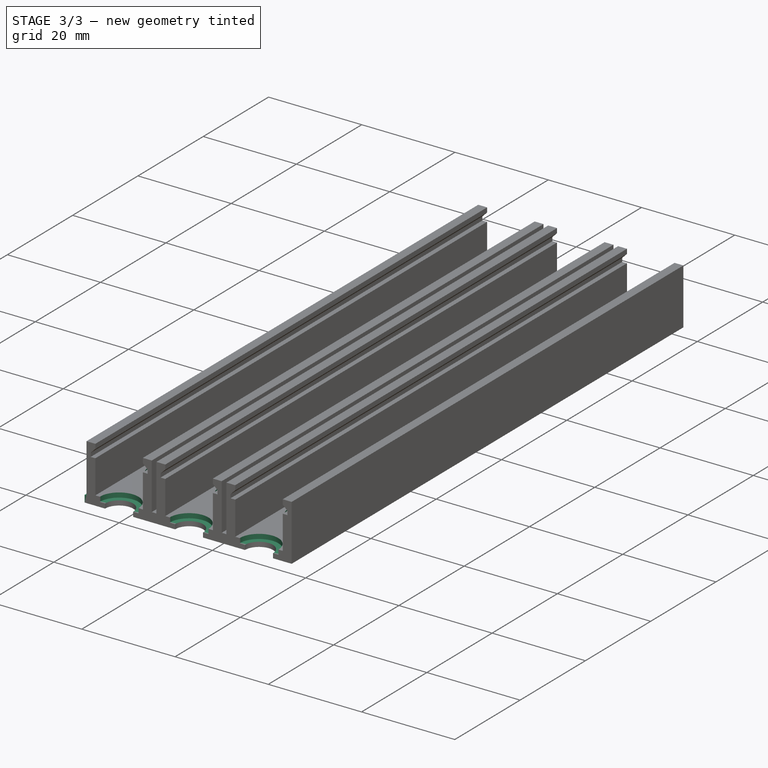
[diagram: stage 3 of 3 — iso view after this stage's code; geometry added in this stage tinted green]
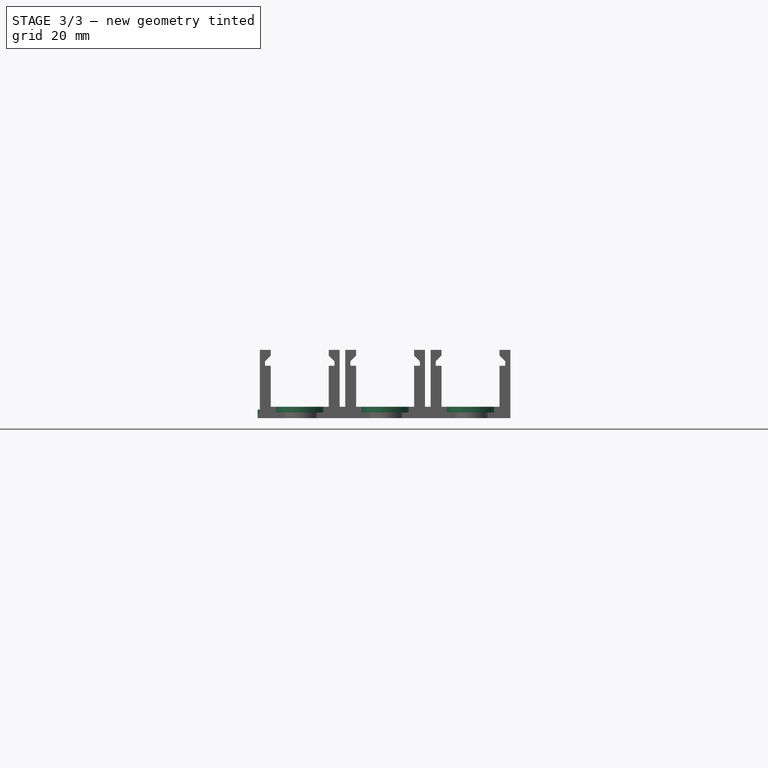
[diagram: stage 3 of 3 — front view after this stage's code; geometry added in this stage tinted green]
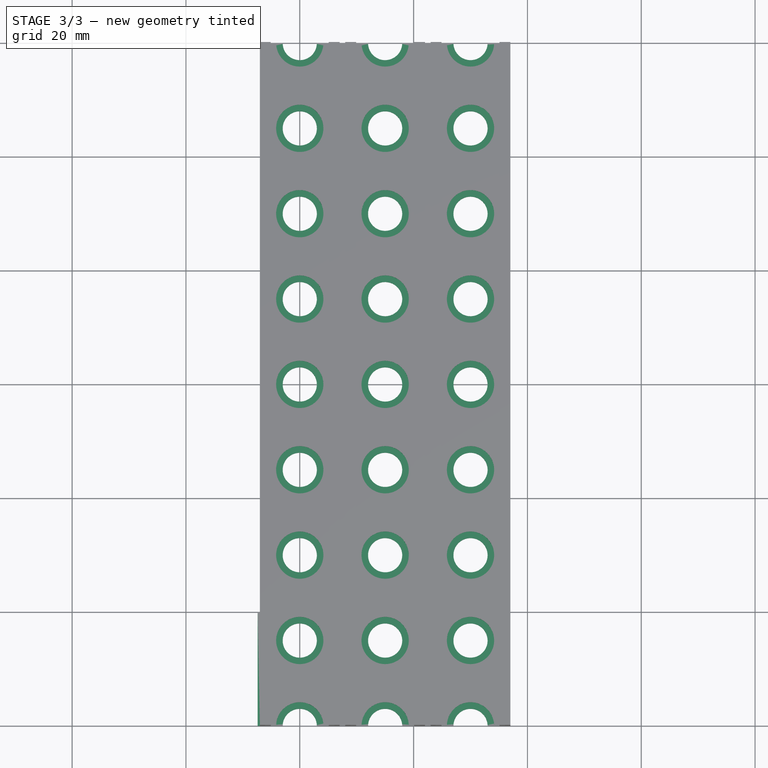
[diagram: stage 3 of 3 — top view after this stage's code; geometry added in this stage tinted green]
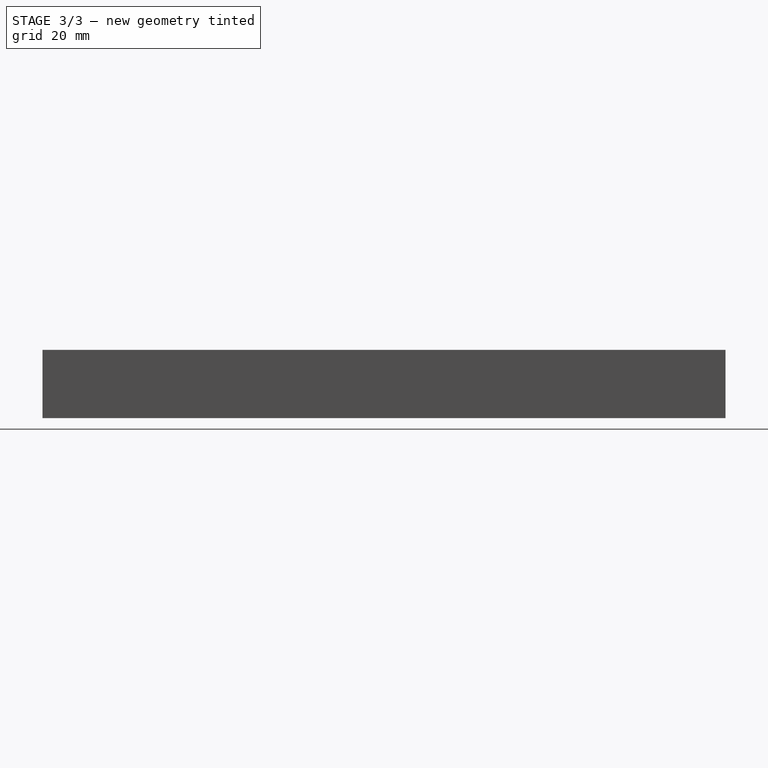
[diagram: stage 3 of 3 — right view after this stage's code; geometry added in this stage tinted green]
FEATURE [PartDesign::Pocket] Pocket013
  BaseFeature = -> Pocket012
  Direction = (0,0,-1)
  Length = 1
  Length2 = 8
  Placement = pos=(0,0,0) rot=(1,0,0;1.5708rad)
  Profile = -> Sketch016
  ReferenceAxis = -> Sketch016 [N_Axis]
  Type = 4
FEATURE [PartDesign::Pocket] Pocket014
  BaseFeature = -> Pocket013
  Direction = (0,0,-1)
  Length = 1
  Length2 = 8
  Placement = pos=(0,0,0) rot=(1,0,0;1.5708rad)
  Profile = -> Sketch017
  ReferenceAxis = -> Sketch017 [N_Axis]
  Type = 4
FEATURE [Sketcher::SketchObject] Sketch
  FullyConstrained = true
  MapMode = 5
  Placement = pos=(-7,0,0) rot=(0.707107,0,-0.707107;3.14159rad)
  Support = -> [Pocket014]
  sketch-geometry (4):
    g0: LineSegment StartX=6 StartY=120 StartZ=0 EndX=4.5 EndY=120 EndZ=0
    g1: LineSegment StartX=4.5 StartY=120 StartZ=0 EndX=4.5 EndY=100 EndZ=0
    g2: LineSegment StartX=4.5 StartY=100 StartZ=0 EndX=6 EndY=100 EndZ=0
    g3: LineSegment StartX=6 StartY=100 StartZ=0 EndX=6 EndY=120 EndZ=0
  constraints (12):
    c: Coincident(g0,g1)
    c: Coincident(g1,g2)
    c: Coincident(g2,g3)
    c: Coincident(g3,g0)
    c: Horizontal(g0)
    c: Horizontal(g2)
    c: Vertical(g1)
    c: Vertical(g3)
    c: Distance(g1) = 20
    c: Distance(g0) = 1.5
    c: DistanceY(g-1,g2) = 100
    c: DistanceX(g-1,g1) = 4.5
FEATURE [PartDesign::Pad] Pad  label="Sticker Indexing Bump"
  BaseFeature = -> Pocket014
  Direction = (-1,0,-2e-16)
  Length = 0.4
  Length2 = 10
  Placement = pos=(0,0,0) rot=(1,0,0;1.5708rad)
  Profile = -> Sketch
  ReferenceAxis = -> Sketch [N_Axis]
  Type = 0
FEATURE [PartDesign::Body] Body001  label="Body"
  Group = -> [Sketch011,Pad002,DatumPlane001,Sketch012,Pad003,LinearPattern001,Sketch013,Sketch014,Sketch016,Sketch017,Pocket,Pocket012,Pocket013,Pocket014,Sketch,Pad]
  Origin = -> Origin001
  Placement = pos=(18.5,-36,9) rot=(0,0,1;0rad)
  Tip = -> Pad
FEATURE [Image::ImagePlane] ImagePlane
  Placement = pos=(11.5,-95.99,9) rot=(0.57735,-0.57735,-0.57735;2.0944rad)
  XSize = 119.973
  YSize = 12
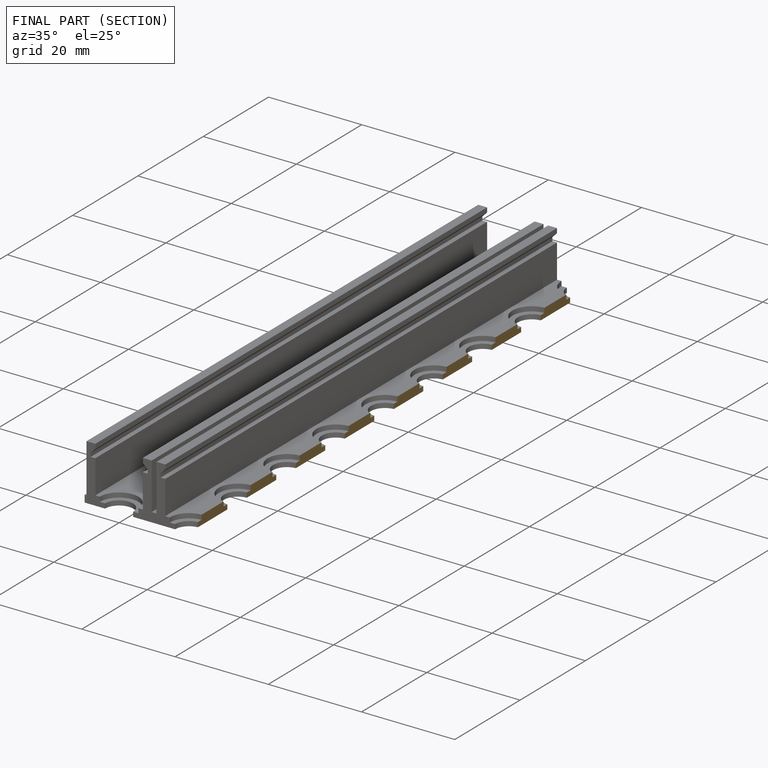
[diagram: finished part — half-section view (interior)]
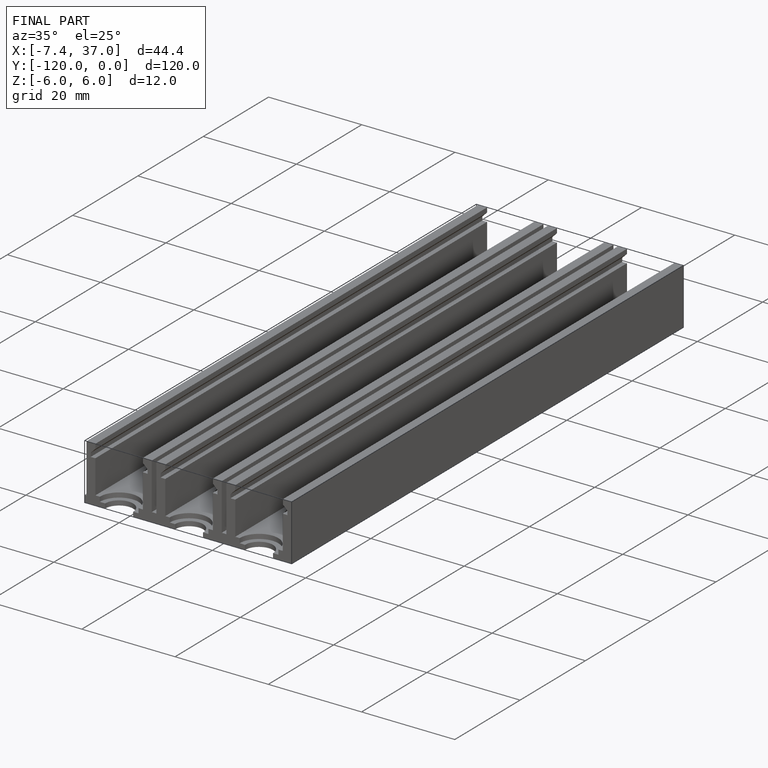
[diagram: finished part — iso view with bounding-box wireframe]
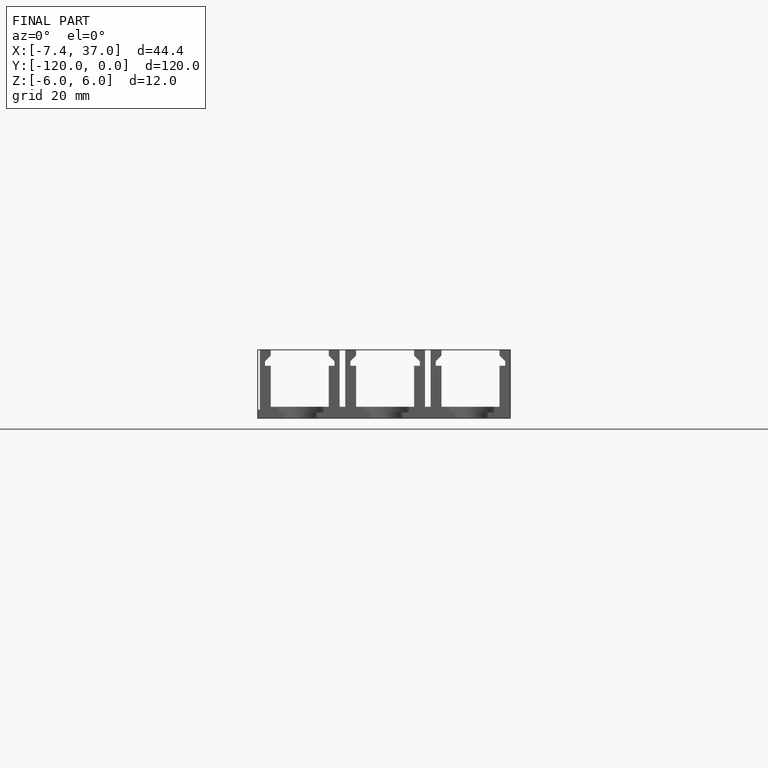
[diagram: finished part — front view with bounding-box wireframe]
